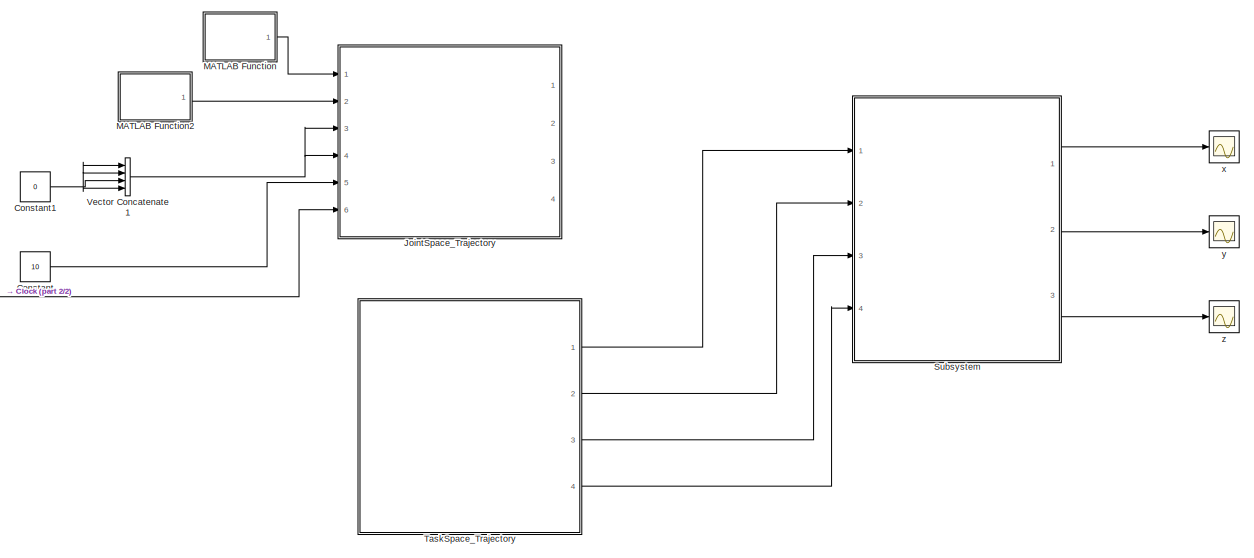
[diagram: root canvas - part 1/2, full width, middle band]
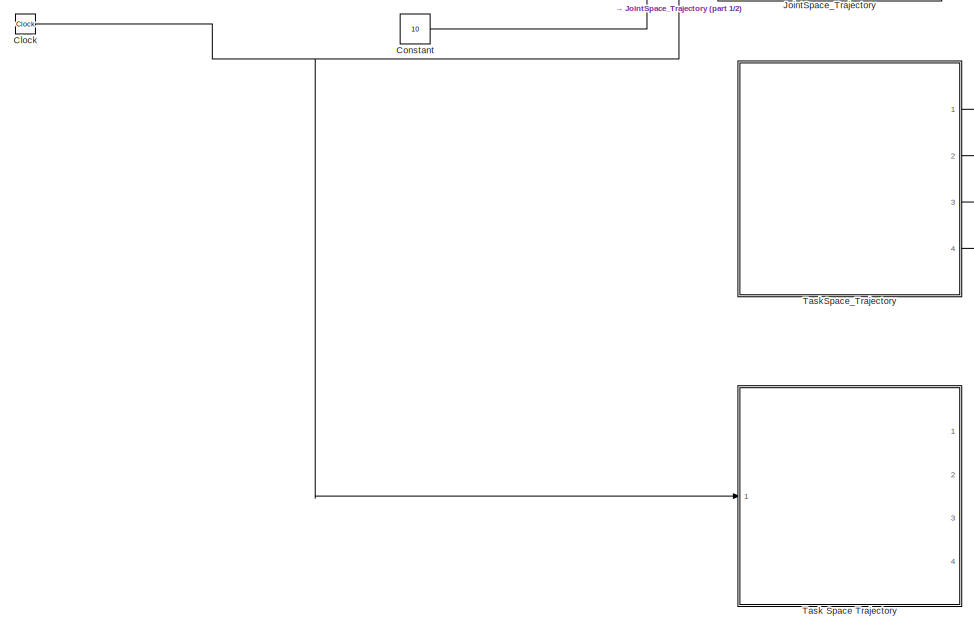
[diagram: root canvas - part 2/2, middle left region]
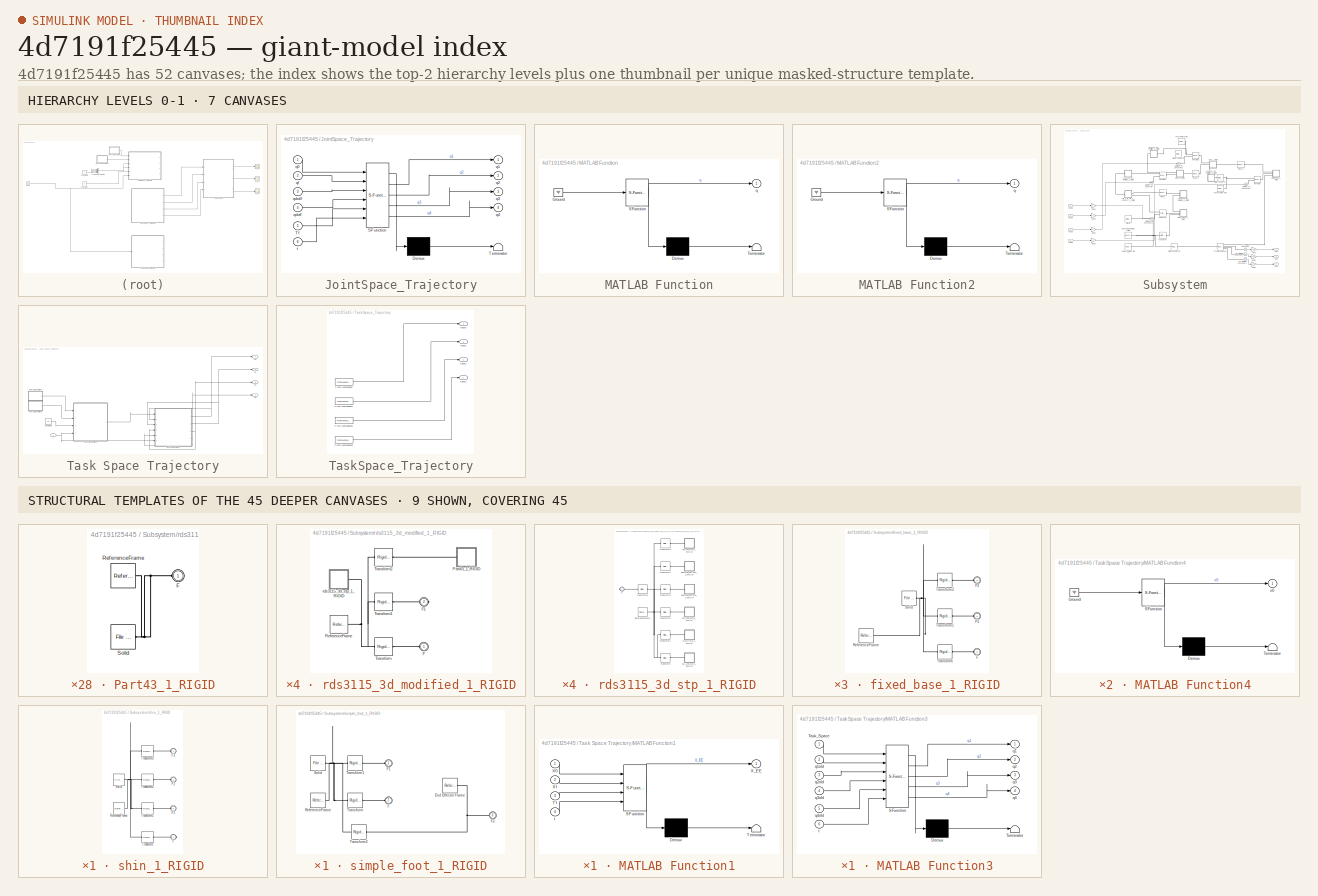
[diagram: thumbnail index - top-2 hierarchy levels (7 canvases) + 9 structural-template representatives of the remaining 45 canvases]
MODEL slx_4d7191f25445
KIND model
CONFIG AbsTol = auto
CONFIG EnableMultiTasking = off
CONFIG MaxStep = auto
CONFIG MinStep = auto
CONFIG RelTol = 1e-3
CONFIG SampleTimeConstraint = Unconstrained
CONFIG SolverName = VariableStepAuto
CONFIG StartTime = 0.0
CONFIG StopTime = 10.000
WORKSPACE source: external: MATLAB File  (data not in archive)
BLOCK [Clock] Clock
BLOCK [Constant] Constant
  Value = 10
BLOCK [Constant] Constant1
  Value = 0
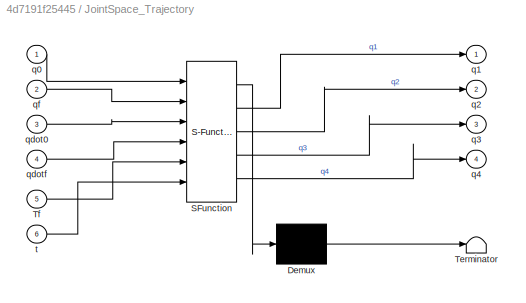
BLOCK [SubSystem] JointSpace_Trajectory
  ErrorFcn = Stateflow.Translate.translate
  PermitHierarchicalResolution = ExplicitOnly
  Ports = [6, 4]
  RequestExecContextInheritance = off
  SFBlockType = MATLAB Function
  TreatAsAtomicUnit = on
BLOCK [Demux] JointSpace_Trajectory/ Demux 
  Outputs = 1
  Ports = [1, 1]
BLOCK [S-Function] JointSpace_Trajectory/ SFunction 
  EnableBusSupport = on
  FunctionName = sf_sfun
  PortCounts = [6 5]
  Ports = [6, 5]
  SFcnIsStateOwnerBlock = off
  SFunctionDeploymentMode = off
  Tag = Stateflow S-Function 2
BLOCK [Terminator] JointSpace_Trajectory/ Terminator 
BLOCK [Inport] JointSpace_Trajectory/Tf
  Port = 5
BLOCK [Inport] JointSpace_Trajectory/q0
BLOCK [Outport] JointSpace_Trajectory/q1
BLOCK [Outport] JointSpace_Trajectory/q2
  Port = 2
BLOCK [Outport] JointSpace_Trajectory/q3
  Port = 3
BLOCK [Outport] JointSpace_Trajectory/q4
  Port = 4
BLOCK [Inport] JointSpace_Trajectory/qdot0
  Port = 3
BLOCK [Inport] JointSpace_Trajectory/qdotf
  Port = 4
BLOCK [Inport] JointSpace_Trajectory/qf
  Port = 2
BLOCK [Inport] JointSpace_Trajectory/t
  Port = 6
BLOCK [SubSystem] MATLAB Function
  ErrorFcn = Stateflow.Translate.translate
  PermitHierarchicalResolution = ExplicitOnly
  Ports = [0, 1]
  RequestExecContextInheritance = off
  SFBlockType = MATLAB Function
  TreatAsAtomicUnit = on
BLOCK [Demux] MATLAB Function/ Demux 
  Outputs = 1
  Ports = [1, 1]
BLOCK [Ground] MATLAB Function/ Ground 
BLOCK [S-Function] MATLAB Function/ SFunction 
  EnableBusSupport = on
  FunctionName = sf_sfun
  PortCounts = [1 2]
  Ports = [1, 2]
  SFcnIsStateOwnerBlock = off
  SFunctionDeploymentMode = off
  Tag = Stateflow S-Function 3
BLOCK [Terminator] MATLAB Function/ Terminator 
BLOCK [Outport] MATLAB Function/q
BLOCK [SubSystem] MATLAB Function2
  ErrorFcn = Stateflow.Translate.translate
  PermitHierarchicalResolution = ExplicitOnly
  Ports = [0, 1]
  RequestExecContextInheritance = off
  SFBlockType = MATLAB Function
  TreatAsAtomicUnit = on
BLOCK [Demux] MATLAB Function2/ Demux 
  Outputs = 1
  Ports = [1, 1]
BLOCK [Ground] MATLAB Function2/ Ground 
BLOCK [S-Function] MATLAB Function2/ SFunction 
  EnableBusSupport = on
  FunctionName = sf_sfun
  PortCounts = [1 2]
  Ports = [1, 2]
  SFcnIsStateOwnerBlock = off
  SFunctionDeploymentMode = off
  Tag = Stateflow S-Function 4
BLOCK [Terminator] MATLAB Function2/ Terminator 
BLOCK [Outport] MATLAB Function2/q
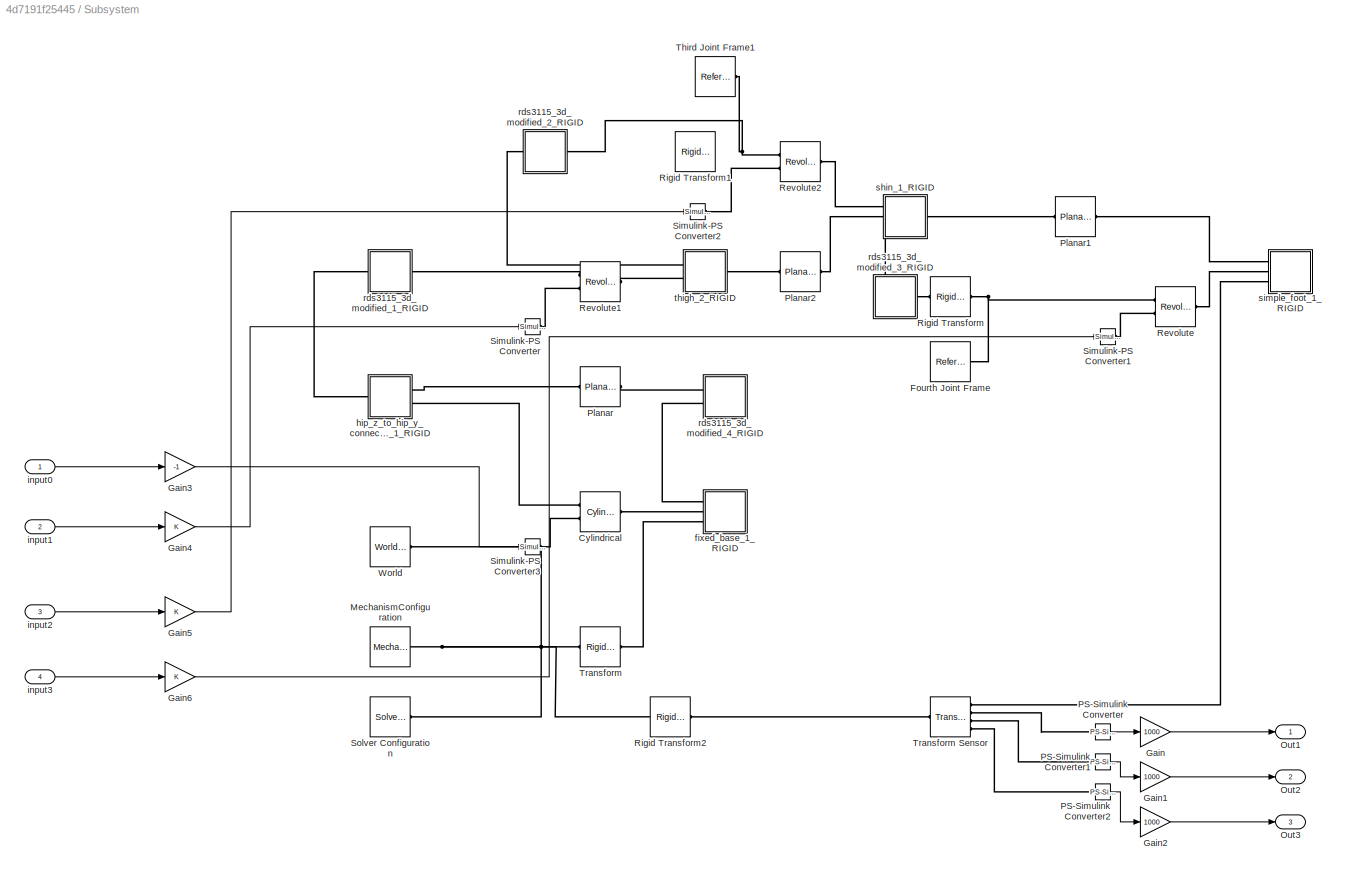
BLOCK [SubSystem] Subsystem
  Ports = [4, 3]
  RequestExecContextInheritance = off
BLOCK [Reference] Subsystem/Cylindrical  REF=sm_lib/Joints/Cylindrical
Joint
  Ports = [0, 0, 0, 0, 0, 2, 1]
  SourceBlock = sm_lib/Joints/Cylindrical\nJoint
  SourceProductBaseCode = MS
  SourceType = Cylindrical\nJoint
BLOCK [Reference] Subsystem/Fourth Joint Frame  REF=sm_lib/Frames and
Transforms/Reference
Frame
  Ports = [0, 0, 0, 0, 0, 0, 1]
  SourceBlock = sm_lib/Frames and\nTransforms/Reference\nFrame
  SourceProductBaseCode = MS
  SourceType = Reference\nFrame
BLOCK [Gain] Subsystem/Gain
  Gain = 1000
BLOCK [Gain] Subsystem/Gain1
  Gain = 1000
BLOCK [Gain] Subsystem/Gain2
  Gain = 1000
BLOCK [Gain] Subsystem/Gain3
  Gain = -1
BLOCK [Gain] Subsystem/Gain4
BLOCK [Gain] Subsystem/Gain5
BLOCK [Gain] Subsystem/Gain6
BLOCK [Reference] Subsystem/MechanismConfiguration  REF=sm_lib/Utilities/Mechanism
Configuration
  Ports = [0, 0, 0, 0, 0, 0, 1]
  SourceBlock = sm_lib/Utilities/Mechanism\nConfiguration
  SourceProductBaseCode = MS
  SourceType = Mechanism\nConfiguration
BLOCK [Outport] Subsystem/Out1
BLOCK [Outport] Subsystem/Out2
  Port = 2
BLOCK [Outport] Subsystem/Out3
  Port = 3
BLOCK [Reference] Subsystem/PS-Simulink Converter  REF=nesl_utility/PS-Simulink
Converter
  Ports = [0, 1, 0, 0, 0, 1]
  SourceBlock = nesl_utility/PS-Simulink\nConverter
  SourceProductBaseCode = PW,SS
  SourceType = PS-Simulink\nConverter
BLOCK [Reference] Subsystem/PS-Simulink Converter1  REF=nesl_utility/PS-Simulink
Converter
  Ports = [0, 1, 0, 0, 0, 1]
  SourceBlock = nesl_utility/PS-Simulink\nConverter
  SourceProductBaseCode = PW,SS
  SourceType = PS-Simulink\nConverter
BLOCK [Reference] Subsystem/PS-Simulink Converter2  REF=nesl_utility/PS-Simulink
Converter
  Ports = [0, 1, 0, 0, 0, 1]
  SourceBlock = nesl_utility/PS-Simulink\nConverter
  SourceProductBaseCode = PW,SS
  SourceType = PS-Simulink\nConverter
BLOCK [Reference] Subsystem/Planar  REF=sm_lib/Joints/Planar Joint
  Ports = [0, 0, 0, 0, 0, 1, 1]
  SourceBlock = sm_lib/Joints/Planar Joint
  SourceProductBaseCode = MS
  SourceType = Planar Joint
BLOCK [Reference] Subsystem/Planar1  REF=sm_lib/Joints/Planar Joint
  Ports = [0, 0, 0, 0, 0, 1, 1]
  SourceBlock = sm_lib/Joints/Planar Joint
  SourceProductBaseCode = MS
  SourceType = Planar Joint
BLOCK [Reference] Subsystem/Planar2  REF=sm_lib/Joints/Planar Joint
  Ports = [0, 0, 0, 0, 0, 1, 1]
  SourceBlock = sm_lib/Joints/Planar Joint
  SourceProductBaseCode = MS
  SourceType = Planar Joint
BLOCK [Reference] Subsystem/Revolute  REF=sm_lib/Joints/Revolute Joint
  Ports = [0, 0, 0, 0, 0, 2, 1]
  SourceBlock = sm_lib/Joints/Revolute Joint
  SourceProductBaseCode = MS
  SourceType = Revolute Joint
BLOCK [Reference] Subsystem/Revolute1  REF=sm_lib/Joints/Revolute Joint
  Ports = [0, 0, 0, 0, 0, 2, 1]
  SourceBlock = sm_lib/Joints/Revolute Joint
  SourceProductBaseCode = MS
  SourceType = Revolute Joint
BLOCK [Reference] Subsystem/Revolute2  REF=sm_lib/Joints/Revolute Joint
  Ports = [0, 0, 0, 0, 0, 2, 1]
  SourceBlock = sm_lib/Joints/Revolute Joint
  SourceProductBaseCode = MS
  SourceType = Revolute Joint
BLOCK [Reference] Subsystem/Rigid Transform  REF=sm_lib/Frames and
Transforms/Rigid
Transform
  Ports = [0, 0, 0, 0, 0, 1, 1]
  SourceBlock = sm_lib/Frames and\nTransforms/Rigid\nTransform
  SourceProductBaseCode = MS
  SourceType = Rigid\nTransform
BLOCK [Reference] Subsystem/Rigid Transform1  REF=sm_lib/Frames and
Transforms/Rigid
Transform
  Commented = on
  Ports = [0, 0, 0, 0, 0, 1, 1]
  SourceBlock = sm_lib/Frames and\nTransforms/Rigid\nTransform
  SourceProductBaseCode = MS
  SourceType = Rigid\nTransform
BLOCK [Reference] Subsystem/Rigid Transform2  REF=sm_lib/Frames and
Transforms/Rigid
Transform
  Ports = [0, 0, 0, 0, 0, 1, 1]
  SourceBlock = sm_lib/Frames and\nTransforms/Rigid\nTransform
  SourceProductBaseCode = MS
  SourceType = Rigid\nTransform
BLOCK [Reference] Subsystem/Simulink-PS Converter  REF=nesl_utility/Simulink-PS
Converter
  Ports = [1, 0, 0, 0, 0, 0, 1]
  SourceBlock = nesl_utility/Simulink-PS\nConverter
  SourceProductBaseCode = PW,SS
  SourceType = Simulink-PS\nConverter
BLOCK [Reference] Subsystem/Simulink-PS Converter1  REF=nesl_utility/Simulink-PS
Converter
  Ports = [1, 0, 0, 0, 0, 0, 1]
  SourceBlock = nesl_utility/Simulink-PS\nConverter
  SourceProductBaseCode = PW,SS
  SourceType = Simulink-PS\nConverter
BLOCK [Reference] Subsystem/Simulink-PS Converter2  REF=nesl_utility/Simulink-PS
Converter
  Ports = [1, 0, 0, 0, 0, 0, 1]
  SourceBlock = nesl_utility/Simulink-PS\nConverter
  SourceProductBaseCode = PW,SS
  SourceType = Simulink-PS\nConverter
BLOCK [Reference] Subsystem/Simulink-PS Converter3  REF=nesl_utility/Simulink-PS
Converter
  Ports = [1, 0, 0, 0, 0, 0, 1]
  SourceBlock = nesl_utility/Simulink-PS\nConverter
  SourceProductBaseCode = PW,SS
  SourceType = Simulink-PS\nConverter
BLOCK [Reference] Subsystem/Solver Configuration  REF=nesl_utility/Solver
Configuration
  Ports = [0, 0, 0, 0, 0, 0, 1]
  SourceBlock = nesl_utility/Solver\nConfiguration
  SourceProductBaseCode = PW,SS
  SourceType = Solver\nConfiguration
BLOCK [Reference] Subsystem/Third Joint Frame1  REF=sm_lib/Frames and
Transforms/Reference
Frame
  Ports = [0, 0, 0, 0, 0, 0, 1]
  SourceBlock = sm_lib/Frames and\nTransforms/Reference\nFrame
  SourceProductBaseCode = MS
  SourceType = Reference\nFrame
BLOCK [Reference] Subsystem/Transform  REF=sm_lib/Frames and
Transforms/Rigid
Transform
  Ports = [0, 0, 0, 0, 0, 1, 1]
  SourceBlock = sm_lib/Frames and\nTransforms/Rigid\nTransform
  SourceProductBaseCode = MS
  SourceType = Rigid\nTransform
BLOCK [Reference] Subsystem/Transform Sensor  REF=sm_lib/Frames and
Transforms/Transform
Sensor
  Ports = [0, 0, 0, 0, 0, 1, 4]
  SourceBlock = sm_lib/Frames and\nTransforms/Transform\nSensor
  SourceProductBaseCode = MS
  SourceType = Transform\nSensor
BLOCK [Reference] Subsystem/World  REF=sm_lib/Frames and
Transforms/World Frame
  Ports = [0, 0, 0, 0, 0, 0, 1]
  SourceBlock = sm_lib/Frames and\nTransforms/World Frame
  SourceProductBaseCode = MS
  SourceType = World Frame
BLOCK [SubSystem] Subsystem/fixed_base_1_RIGID
  Ports = [0, 0, 0, 0, 0, 3]
  RequestExecContextInheritance = off
BLOCK [PMIOPort] Subsystem/fixed_base_1_RIGID/F
  Port = 2
  Side = Left
BLOCK [PMIOPort] Subsystem/fixed_base_1_RIGID/F1
  Side = Left
BLOCK [PMIOPort] Subsystem/fixed_base_1_RIGID/F2
  Port = 3
  Side = Left
BLOCK [Reference] Subsystem/fixed_base_1_RIGID/ReferenceFrame  REF=sm_lib/Frames and
Transforms/Reference
Frame
  Commented = on
  Ports = [0, 0, 0, 0, 0, 0, 1]
  SourceBlock = sm_lib/Frames and\nTransforms/Reference\nFrame
  SourceProductBaseCode = MS
  SourceType = Reference\nFrame
BLOCK [Reference] Subsystem/fixed_base_1_RIGID/Solid  REF=sm_lib/Body Elements/File Solid
  Ports = [0, 0, 0, 0, 0, 0, 1]
  SourceBlock = sm_lib/Body Elements/File Solid
  SourceProductBaseCode = MS
  SourceType = File Solid
BLOCK [Reference] Subsystem/fixed_base_1_RIGID/Transform  REF=sm_lib/Frames and
Transforms/Rigid
Transform
  Ports = [0, 0, 0, 0, 0, 1, 1]
  SourceBlock = sm_lib/Frames and\nTransforms/Rigid\nTransform
  SourceProductBaseCode = MS
  SourceType = Rigid\nTransform
BLOCK [Reference] Subsystem/fixed_base_1_RIGID/Transform1  REF=sm_lib/Frames and
Transforms/Rigid
Transform
  Ports = [0, 0, 0, 0, 0, 1, 1]
  SourceBlock = sm_lib/Frames and\nTransforms/Rigid\nTransform
  SourceProductBaseCode = MS
  SourceType = Rigid\nTransform
BLOCK [Reference] Subsystem/fixed_base_1_RIGID/Transform2  REF=sm_lib/Frames and
Transforms/Rigid
Transform
  Ports = [0, 0, 0, 0, 0, 1, 1]
  SourceBlock = sm_lib/Frames and\nTransforms/Rigid\nTransform
  SourceProductBaseCode = MS
  SourceType = Rigid\nTransform
BLOCK [SubSystem] Subsystem/hip_z_to_hip_y_connecto_modified_1_RIGID
  Ports = [0, 0, 0, 0, 0, 1, 2]
  RequestExecContextInheritance = off
BLOCK [PMIOPort] Subsystem/hip_z_to_hip_y_connecto_modified_1_RIGID/F
  Port = 3
  Side = Right
BLOCK [PMIOPort] Subsystem/hip_z_to_hip_y_connecto_modified_1_RIGID/F1
  Side = Left
BLOCK [PMIOPort] Subsystem/hip_z_to_hip_y_connecto_modified_1_RIGID/F2
  Port = 2
  Side = Right
BLOCK [Reference] Subsystem/hip_z_to_hip_y_connecto_modified_1_RIGID/ReferenceFrame  REF=sm_lib/Frames and
Transforms/Reference
Frame
  Commented = on
  Ports = [0, 0, 0, 0, 0, 0, 1]
  SourceBlock = sm_lib/Frames and\nTransforms/Reference\nFrame
  SourceProductBaseCode = MS
  SourceType = Reference\nFrame
BLOCK [Reference] Subsystem/hip_z_to_hip_y_connecto_modified_1_RIGID/Solid  REF=sm_lib/Body Elements/File Solid
  Ports = [0, 0, 0, 0, 0, 0, 1]
  SourceBlock = sm_lib/Body Elements/File Solid
  SourceProductBaseCode = MS
  SourceType = File Solid
BLOCK [Reference] Subsystem/hip_z_to_hip_y_connecto_modified_1_RIGID/Transform  REF=sm_lib/Frames and
Transforms/Rigid
Transform
  Ports = [0, 0, 0, 0, 0, 1, 1]
  SourceBlock = sm_lib/Frames and\nTransforms/Rigid\nTransform
  SourceProductBaseCode = MS
  SourceType = Rigid\nTransform
BLOCK [Reference] Subsystem/hip_z_to_hip_y_connecto_modified_1_RIGID/Transform1  REF=sm_lib/Frames and
Transforms/Rigid
Transform
  Ports = [0, 0, 0, 0, 0, 1, 1]
  SourceBlock = sm_lib/Frames and\nTransforms/Rigid\nTransform
  SourceProductBaseCode = MS
  SourceType = Rigid\nTransform
BLOCK [Reference] Subsystem/hip_z_to_hip_y_connecto_modified_1_RIGID/Transform2  REF=sm_lib/Frames and
Transforms/Rigid
Transform
  Ports = [0, 0, 0, 0, 0, 1, 1]
  SourceBlock = sm_lib/Frames and\nTransforms/Rigid\nTransform
  SourceProductBaseCode = MS
  SourceType = Rigid\nTransform
BLOCK [Inport] Subsystem/input0
BLOCK [Inport] Subsystem/input1
  Port = 2
BLOCK [Inport] Subsystem/input2
  Port = 3
BLOCK [Inport] Subsystem/input3
  Port = 4
BLOCK [SubSystem] Subsystem/rds3115_3d_modified_1_RIGID
  Ports = [0, 0, 0, 0, 0, 1, 1]
  RequestExecContextInheritance = off
BLOCK [PMIOPort] Subsystem/rds3115_3d_modified_1_RIGID/F
  Side = Left
BLOCK [PMIOPort] Subsystem/rds3115_3d_modified_1_RIGID/F1
  Port = 2
  Side = Right
BLOCK [SubSystem] Subsystem/rds3115_3d_modified_1_RIGID/Part43_1_RIGID
  Ports = [0, 0, 0, 0, 0, 1]
  RequestExecContextInheritance = off
BLOCK [PMIOPort] Subsystem/rds3115_3d_modified_1_RIGID/Part43_1_RIGID/F
  Side = Left
BLOCK [Reference] Subsystem/rds3115_3d_modified_1_RIGID/Part43_1_RIGID/ReferenceFrame  REF=sm_lib/Frames and
Transforms/Reference
Frame
  Commented = on
  Ports = [0, 0, 0, 0, 0, 0, 1]
  SourceBlock = sm_lib/Frames and\nTransforms/Reference\nFrame
  SourceProductBaseCode = MS
  SourceType = Reference\nFrame
BLOCK [Reference] Subsystem/rds3115_3d_modified_1_RIGID/Part43_1_RIGID/Solid  REF=sm_lib/Body Elements/File Solid
  Ports = [0, 0, 0, 0, 0, 0, 1]
  SourceBlock = sm_lib/Body Elements/File Solid
  SourceProductBaseCode = MS
  SourceType = File Solid
BLOCK [Reference] Subsystem/rds3115_3d_modified_1_RIGID/ReferenceFrame  REF=sm_lib/Frames and
Transforms/Reference
Frame
  Ports = [0, 0, 0, 0, 0, 0, 1]
  SourceBlock = sm_lib/Frames and\nTransforms/Reference\nFrame
  SourceProductBaseCode = MS
  SourceType = Reference\nFrame
BLOCK [Reference] Subsystem/rds3115_3d_modified_1_RIGID/Transform  REF=sm_lib/Frames and
Transforms/Rigid
Transform
  Ports = [0, 0, 0, 0, 0, 1, 1]
  SourceBlock = sm_lib/Frames and\nTransforms/Rigid\nTransform
  SourceProductBaseCode = MS
  SourceType = Rigid\nTransform
BLOCK [Reference] Subsystem/rds3115_3d_modified_1_RIGID/Transform1  REF=sm_lib/Frames and
Transforms/Rigid
Transform
  Ports = [0, 0, 0, 0, 0, 1, 1]
  SourceBlock = sm_lib/Frames and\nTransforms/Rigid\nTransform
  SourceProductBaseCode = MS
  SourceType = Rigid\nTransform
BLOCK [Reference] Subsystem/rds3115_3d_modified_1_RIGID/Transform2  REF=sm_lib/Frames and
Transforms/Rigid
Transform
  Ports = [0, 0, 0, 0, 0, 1, 1]
  SourceBlock = sm_lib/Frames and\nTransforms/Rigid\nTransform
  SourceProductBaseCode = MS
  SourceType = Rigid\nTransform
BLOCK [SubSystem] Subsystem/rds3115_3d_modified_1_RIGID/rds3115_3d_stp_1_RIGID
  Ports = [0, 0, 0, 0, 0, 0, 1]
  RequestExecContextInheritance = off
BLOCK [SubSystem] Subsystem/rds3115_3d_modified_1_RIGID/rds3115_3d_stp_1_RIGID/DG_130_stp_1_RIGID
  Ports = [0, 0, 0, 0, 0, 1]
  RequestExecContextInheritance = off
BLOCK [PMIOPort] Subsystem/rds3115_3d_modified_1_RIGID/rds3115_3d_stp_1_RIGID/DG_130_stp_1_RIGID/F
  Side = Left
BLOCK [Reference] Subsystem/rds3115_3d_modified_1_RIGID/rds3115_3d_stp_1_RIGID/DG_130_stp_1_RIGID/ReferenceFrame  REF=sm_lib/Frames and
Transforms/Reference
Frame
  Commented = on
  Ports = [0, 0, 0, 0, 0, 0, 1]
  SourceBlock = sm_lib/Frames and\nTransforms/Reference\nFrame
  SourceProductBaseCode = MS
  SourceType = Reference\nFrame
BLOCK [Reference] Subsystem/rds3115_3d_modified_1_RIGID/rds3115_3d_stp_1_RIGID/DG_130_stp_1_RIGID/Solid  REF=sm_lib/Body Elements/File Solid
  Ports = [0, 0, 0, 0, 0, 0, 1]
  SourceBlock = sm_lib/Body Elements/File Solid
  SourceProductBaseCode = MS
  SourceType = File Solid
BLOCK [SubSystem] Subsystem/rds3115_3d_modified_1_RIGID/rds3115_3d_stp_1_RIGID/DUOPAN_DG_stp_1_RIGID
  Ports = [0, 0, 0, 0, 0, 1]
  RequestExecContextInheritance = off
BLOCK [PMIOPort] Subsystem/rds3115_3d_modified_1_RIGID/rds3115_3d_stp_1_RIGID/DUOPAN_DG_stp_1_RIGID/F
  Side = Left
BLOCK [Reference] Subsystem/rds3115_3d_modified_1_RIGID/rds3115_3d_stp_1_RIGID/DUOPAN_DG_stp_1_RIGID/ReferenceFrame  REF=sm_lib/Frames and
Transforms/Reference
Frame
  Commented = on
  Ports = [0, 0, 0, 0, 0, 0, 1]
  SourceBlock = sm_lib/Frames and\nTransforms/Reference\nFrame
  SourceProductBaseCode = MS
  SourceType = Reference\nFrame
BLOCK [Reference] Subsystem/rds3115_3d_modified_1_RIGID/rds3115_3d_stp_1_RIGID/DUOPAN_DG_stp_1_RIGID/Solid  REF=sm_lib/Body Elements/File Solid
  Ports = [0, 0, 0, 0, 0, 0, 1]
  SourceBlock = sm_lib/Body Elements/File Solid
  SourceProductBaseCode = MS
  SourceType = File Solid
BLOCK [SubSystem] Subsystem/rds3115_3d_modified_1_RIGID/rds3115_3d_stp_1_RIGID/DUOPAN_SG_stp_1_RIGID
  Ports = [0, 0, 0, 0, 0, 1]
  RequestExecContextInheritance = off
BLOCK [PMIOPort] Subsystem/rds3115_3d_modified_1_RIGID/rds3115_3d_stp_1_RIGID/DUOPAN_SG_stp_1_RIGID/F
  Side = Left
BLOCK [Reference] Subsystem/rds3115_3d_modified_1_RIGID/rds3115_3d_stp_1_RIGID/DUOPAN_SG_stp_1_RIGID/ReferenceFrame  REF=sm_lib/Frames and
Transforms/Reference
Frame
  Commented = on
  Ports = [0, 0, 0, 0, 0, 0, 1]
  SourceBlock = sm_lib/Frames and\nTransforms/Reference\nFrame
  SourceProductBaseCode = MS
  SourceType = Reference\nFrame
BLOCK [Reference] Subsystem/rds3115_3d_modified_1_RIGID/rds3115_3d_stp_1_RIGID/DUOPAN_SG_stp_1_RIGID/Solid  REF=sm_lib/Body Elements/File Solid
  Ports = [0, 0, 0, 0, 0, 0, 1]
  SourceBlock = sm_lib/Body Elements/File Solid
  SourceProductBaseCode = MS
  SourceType = File Solid
BLOCK [PMIOPort] Subsystem/rds3115_3d_modified_1_RIGID/rds3115_3d_stp_1_RIGID/F
  Side = Right
BLOCK [SubSystem] Subsystem/rds3115_3d_modified_1_RIGID/rds3115_3d_stp_1_RIGID/GE_57_stp_1_RIGID
  Ports = [0, 0, 0, 0, 0, 1]
  RequestExecContextInheritance = off
BLOCK [PMIOPort] Subsystem/rds3115_3d_modified_1_RIGID/rds3115_3d_stp_1_RIGID/GE_57_stp_1_RIGID/F
  Side = Left
BLOCK [Reference] Subsystem/rds3115_3d_modified_1_RIGID/rds3115_3d_stp_1_RIGID/GE_57_stp_1_RIGID/ReferenceFrame  REF=sm_lib/Frames and
Transforms/Reference
Frame
  Commented = on
  Ports = [0, 0, 0, 0, 0, 0, 1]
  SourceBlock = sm_lib/Frames and\nTransforms/Reference\nFrame
  SourceProductBaseCode = MS
  SourceType = Reference\nFrame
BLOCK [Reference] Subsystem/rds3115_3d_modified_1_RIGID/rds3115_3d_stp_1_RIGID/GE_57_stp_1_RIGID/Solid  REF=sm_lib/Body Elements/File Solid
  Ports = [0, 0, 0, 0, 0, 0, 1]
  SourceBlock = sm_lib/Body Elements/File Solid
  SourceProductBaseCode = MS
  SourceType = File Solid
BLOCK [Reference] Subsystem/rds3115_3d_modified_1_RIGID/rds3115_3d_stp_1_RIGID/ReferenceFrame  REF=sm_lib/Frames and
Transforms/Reference
Frame
  Commented = on
  Ports = [0, 0, 0, 0, 0, 0, 1]
  SourceBlock = sm_lib/Frames and\nTransforms/Reference\nFrame
  SourceProductBaseCode = MS
  SourceType = Reference\nFrame
BLOCK [SubSystem] Subsystem/rds3115_3d_modified_1_RIGID/rds3115_3d_stp_1_RIGID/SG_178_stp_1_RIGID
  Ports = [0, 0, 0, 0, 0, 1]
  RequestExecContextInheritance = off
BLOCK [PMIOPort] Subsystem/rds3115_3d_modified_1_RIGID/rds3115_3d_stp_1_RIGID/SG_178_stp_1_RIGID/F
  Side = Left
BLOCK [Reference] Subsystem/rds3115_3d_modified_1_RIGID/rds3115_3d_stp_1_RIGID/SG_178_stp_1_RIGID/ReferenceFrame  REF=sm_lib/Frames and
Transforms/Reference
Frame
  Commented = on
  Ports = [0, 0, 0, 0, 0, 0, 1]
  SourceBlock = sm_lib/Frames and\nTransforms/Reference\nFrame
  SourceProductBaseCode = MS
  SourceType = Reference\nFrame
BLOCK [Reference] Subsystem/rds3115_3d_modified_1_RIGID/rds3115_3d_stp_1_RIGID/SG_178_stp_1_RIGID/Solid  REF=sm_lib/Body Elements/File Solid
  Ports = [0, 0, 0, 0, 0, 0, 1]
  SourceBlock = sm_lib/Body Elements/File Solid
  SourceProductBaseCode = MS
  SourceType = File Solid
BLOCK [Reference] Subsystem/rds3115_3d_modified_1_RIGID/rds3115_3d_stp_1_RIGID/Transform  REF=sm_lib/Frames and
Transforms/Rigid
Transform
  Ports = [0, 0, 0, 0, 0, 1, 1]
  SourceBlock = sm_lib/Frames and\nTransforms/Rigid\nTransform
  SourceProductBaseCode = MS
  SourceType = Rigid\nTransform
BLOCK [Reference] Subsystem/rds3115_3d_modified_1_RIGID/rds3115_3d_stp_1_RIGID/Transform1  REF=sm_lib/Frames and
Transforms/Rigid
Transform
  Ports = [0, 0, 0, 0, 0, 1, 1]
  SourceBlock = sm_lib/Frames and\nTransforms/Rigid\nTransform
  SourceProductBaseCode = MS
  SourceType = Rigid\nTransform
BLOCK [Reference] Subsystem/rds3115_3d_modified_1_RIGID/rds3115_3d_stp_1_RIGID/Transform2  REF=sm_lib/Frames and
Transforms/Rigid
Transform
  Ports = [0, 0, 0, 0, 0, 1, 1]
  SourceBlock = sm_lib/Frames and\nTransforms/Rigid\nTransform
  SourceProductBaseCode = MS
  SourceType = Rigid\nTransform
BLOCK [Reference] Subsystem/rds3115_3d_modified_1_RIGID/rds3115_3d_stp_1_RIGID/Transform3  REF=sm_lib/Frames and
Transforms/Rigid
Transform
  Ports = [0, 0, 0, 0, 0, 1, 1]
  SourceBlock = sm_lib/Frames and\nTransforms/Rigid\nTransform
  SourceProductBaseCode = MS
  SourceType = Rigid\nTransform
BLOCK [Reference] Subsystem/rds3115_3d_modified_1_RIGID/rds3115_3d_stp_1_RIGID/Transform4  REF=sm_lib/Frames and
Transforms/Rigid
Transform
  Ports = [0, 0, 0, 0, 0, 1, 1]
  SourceBlock = sm_lib/Frames and\nTransforms/Rigid\nTransform
  SourceProductBaseCode = MS
  SourceType = Rigid\nTransform
BLOCK [Reference] Subsystem/rds3115_3d_modified_1_RIGID/rds3115_3d_stp_1_RIGID/Transform5  REF=sm_lib/Frames and
Transforms/Rigid
Transform
  Ports = [0, 0, 0, 0, 0, 1, 1]
  SourceBlock = sm_lib/Frames and\nTransforms/Rigid\nTransform
  SourceProductBaseCode = MS
  SourceType = Rigid\nTransform
BLOCK [Reference] Subsystem/rds3115_3d_modified_1_RIGID/rds3115_3d_stp_1_RIGID/Transform6  REF=sm_lib/Frames and
Transforms/Rigid
Transform
  Ports = [0, 0, 0, 0, 0, 1, 1]
  SourceBlock = sm_lib/Frames and\nTransforms/Rigid\nTransform
  SourceProductBaseCode = MS
  SourceType = Rigid\nTransform
BLOCK [SubSystem] Subsystem/rds3115_3d_modified_1_RIGID/rds3115_3d_stp_1_RIGID/ZK_142_stp_1_RIGID
  Ports = [0, 0, 0, 0, 0, 1]
  RequestExecContextInheritance = off
BLOCK [PMIOPort] Subsystem/rds3115_3d_modified_1_RIGID/rds3115_3d_stp_1_RIGID/ZK_142_stp_1_RIGID/F
  Side = Left
BLOCK [Reference] Subsystem/rds3115_3d_modified_1_RIGID/rds3115_3d_stp_1_RIGID/ZK_142_stp_1_RIGID/ReferenceFrame  REF=sm_lib/Frames and
Transforms/Reference
Frame
  Commented = on
  Ports = [0, 0, 0, 0, 0, 0, 1]
  SourceBlock = sm_lib/Frames and\nTransforms/Reference\nFrame
  SourceProductBaseCode = MS
  SourceType = Reference\nFrame
BLOCK [Reference] Subsystem/rds3115_3d_modified_1_RIGID/rds3115_3d_stp_1_RIGID/ZK_142_stp_1_RIGID/Solid  REF=sm_lib/Body Elements/File Solid
  Ports = [0, 0, 0, 0, 0, 0, 1]
  SourceBlock = sm_lib/Body Elements/File Solid
  SourceProductBaseCode = MS
  SourceType = File Solid
BLOCK [SubSystem] Subsystem/rds3115_3d_modified_2_RIGID
  Ports = [0, 0, 0, 0, 0, 1, 1]
  RequestExecContextInheritance = off
BLOCK [PMIOPort] Subsystem/rds3115_3d_modified_2_RIGID/F
  Side = Left
BLOCK [PMIOPort] Subsystem/rds3115_3d_modified_2_RIGID/F1
  Port = 2
  Side = Right
BLOCK [SubSystem] Subsystem/rds3115_3d_modified_2_RIGID/Part43_1_RIGID
  Ports = [0, 0, 0, 0, 0, 1]
  RequestExecContextInheritance = off
BLOCK [PMIOPort] Subsystem/rds3115_3d_modified_2_RIGID/Part43_1_RIGID/F
  Side = Left
BLOCK [Reference] Subsystem/rds3115_3d_modified_2_RIGID/Part43_1_RIGID/ReferenceFrame  REF=sm_lib/Frames and
Transforms/Reference
Frame
  Commented = on
  Ports = [0, 0, 0, 0, 0, 0, 1]
  SourceBlock = sm_lib/Frames and\nTransforms/Reference\nFrame
  SourceProductBaseCode = MS
  SourceType = Reference\nFrame
BLOCK [Reference] Subsystem/rds3115_3d_modified_2_RIGID/Part43_1_RIGID/Solid  REF=sm_lib/Body Elements/File Solid
  Ports = [0, 0, 0, 0, 0, 0, 1]
  SourceBlock = sm_lib/Body Elements/File Solid
  SourceProductBaseCode = MS
  SourceType = File Solid
BLOCK [Reference] Subsystem/rds3115_3d_modified_2_RIGID/ReferenceFrame  REF=sm_lib/Frames and
Transforms/Reference
Frame
  Commented = on
  Ports = [0, 0, 0, 0, 0, 0, 1]
  SourceBlock = sm_lib/Frames and\nTransforms/Reference\nFrame
  SourceProductBaseCode = MS
  SourceType = Reference\nFrame
BLOCK [Reference] Subsystem/rds3115_3d_modified_2_RIGID/Transform  REF=sm_lib/Frames and
Transforms/Rigid
Transform
  Ports = [0, 0, 0, 0, 0, 1, 1]
  SourceBlock = sm_lib/Frames and\nTransforms/Rigid\nTransform
  SourceProductBaseCode = MS
  SourceType = Rigid\nTransform
BLOCK [Reference] Subsystem/rds3115_3d_modified_2_RIGID/Transform1  REF=sm_lib/Frames and
Transforms/Rigid
Transform
  Ports = [0, 0, 0, 0, 0, 1, 1]
  SourceBlock = sm_lib/Frames and\nTransforms/Rigid\nTransform
  SourceProductBaseCode = MS
  SourceType = Rigid\nTransform
BLOCK [Reference] Subsystem/rds3115_3d_modified_2_RIGID/Transform2  REF=sm_lib/Frames and
Transforms/Rigid
Transform
  Ports = [0, 0, 0, 0, 0, 1, 1]
  SourceBlock = sm_lib/Frames and\nTransforms/Rigid\nTransform
  SourceProductBaseCode = MS
  SourceType = Rigid\nTransform
BLOCK [SubSystem] Subsystem/rds3115_3d_modified_2_RIGID/rds3115_3d_stp_1_RIGID
  Ports = [0, 0, 0, 0, 0, 0, 1]
  RequestExecContextInheritance = off
BLOCK [SubSystem] Subsystem/rds3115_3d_modified_2_RIGID/rds3115_3d_stp_1_RIGID/DG_130_stp_1_RIGID
  Ports = [0, 0, 0, 0, 0, 1]
  RequestExecContextInheritance = off
BLOCK [PMIOPort] Subsystem/rds3115_3d_modified_2_RIGID/rds3115_3d_stp_1_RIGID/DG_130_stp_1_RIGID/F
  Side = Left
BLOCK [Reference] Subsystem/rds3115_3d_modified_2_RIGID/rds3115_3d_stp_1_RIGID/DG_130_stp_1_RIGID/ReferenceFrame  REF=sm_lib/Frames and
Transforms/Reference
Frame
  Commented = on
  Ports = [0, 0, 0, 0, 0, 0, 1]
  SourceBlock = sm_lib/Frames and\nTransforms/Reference\nFrame
  SourceProductBaseCode = MS
  SourceType = Reference\nFrame
BLOCK [Reference] Subsystem/rds3115_3d_modified_2_RIGID/rds3115_3d_stp_1_RIGID/DG_130_stp_1_RIGID/Solid  REF=sm_lib/Body Elements/File Solid
  Ports = [0, 0, 0, 0, 0, 0, 1]
  SourceBlock = sm_lib/Body Elements/File Solid
  SourceProductBaseCode = MS
  SourceType = File Solid
BLOCK [SubSystem] Subsystem/rds3115_3d_modified_2_RIGID/rds3115_3d_stp_1_RIGID/DUOPAN_DG_stp_1_RIGID
  Ports = [0, 0, 0, 0, 0, 1]
  RequestExecContextInheritance = off
BLOCK [PMIOPort] Subsystem/rds3115_3d_modified_2_RIGID/rds3115_3d_stp_1_RIGID/DUOPAN_DG_stp_1_RIGID/F
  Side = Left
BLOCK [Reference] Subsystem/rds3115_3d_modified_2_RIGID/rds3115_3d_stp_1_RIGID/DUOPAN_DG_stp_1_RIGID/ReferenceFrame  REF=sm_lib/Frames and
Transforms/Reference
Frame
  Commented = on
  Ports = [0, 0, 0, 0, 0, 0, 1]
  SourceBlock = sm_lib/Frames and\nTransforms/Reference\nFrame
  SourceProductBaseCode = MS
  SourceType = Reference\nFrame
BLOCK [Reference] Subsystem/rds3115_3d_modified_2_RIGID/rds3115_3d_stp_1_RIGID/DUOPAN_DG_stp_1_RIGID/Solid  REF=sm_lib/Body Elements/File Solid
  Ports = [0, 0, 0, 0, 0, 0, 1]
  SourceBlock = sm_lib/Body Elements/File Solid
  SourceProductBaseCode = MS
  SourceType = File Solid
BLOCK [SubSystem] Subsystem/rds3115_3d_modified_2_RIGID/rds3115_3d_stp_1_RIGID/DUOPAN_SG_stp_1_RIGID
  Ports = [0, 0, 0, 0, 0, 1]
  RequestExecContextInheritance = off
BLOCK [PMIOPort] Subsystem/rds3115_3d_modified_2_RIGID/rds3115_3d_stp_1_RIGID/DUOPAN_SG_stp_1_RIGID/F
  Side = Left
BLOCK [Reference] Subsystem/rds3115_3d_modified_2_RIGID/rds3115_3d_stp_1_RIGID/DUOPAN_SG_stp_1_RIGID/ReferenceFrame  REF=sm_lib/Frames and
Transforms/Reference
Frame
  Commented = on
  Ports = [0, 0, 0, 0, 0, 0, 1]
  SourceBlock = sm_lib/Frames and\nTransforms/Reference\nFrame
  SourceProductBaseCode = MS
  SourceType = Reference\nFrame
BLOCK [Reference] Subsystem/rds3115_3d_modified_2_RIGID/rds3115_3d_stp_1_RIGID/DUOPAN_SG_stp_1_RIGID/Solid  REF=sm_lib/Body Elements/File Solid
  Ports = [0, 0, 0, 0, 0, 0, 1]
  SourceBlock = sm_lib/Body Elements/File Solid
  SourceProductBaseCode = MS
  SourceType = File Solid
BLOCK [PMIOPort] Subsystem/rds3115_3d_modified_2_RIGID/rds3115_3d_stp_1_RIGID/F
  Side = Right
BLOCK [SubSystem] Subsystem/rds3115_3d_modified_2_RIGID/rds3115_3d_stp_1_RIGID/GE_57_stp_1_RIGID
  Ports = [0, 0, 0, 0, 0, 1]
  RequestExecContextInheritance = off
BLOCK [PMIOPort] Subsystem/rds3115_3d_modified_2_RIGID/rds3115_3d_stp_1_RIGID/GE_57_stp_1_RIGID/F
  Side = Left
BLOCK [Reference] Subsystem/rds3115_3d_modified_2_RIGID/rds3115_3d_stp_1_RIGID/GE_57_stp_1_RIGID/ReferenceFrame  REF=sm_lib/Frames and
Transforms/Reference
Frame
  Commented = on
  Ports = [0, 0, 0, 0, 0, 0, 1]
  SourceBlock = sm_lib/Frames and\nTransforms/Reference\nFrame
  SourceProductBaseCode = MS
  SourceType = Reference\nFrame
BLOCK [Reference] Subsystem/rds3115_3d_modified_2_RIGID/rds3115_3d_stp_1_RIGID/GE_57_stp_1_RIGID/Solid  REF=sm_lib/Body Elements/File Solid
  Ports = [0, 0, 0, 0, 0, 0, 1]
  SourceBlock = sm_lib/Body Elements/File Solid
  SourceProductBaseCode = MS
  SourceType = File Solid
BLOCK [Reference] Subsystem/rds3115_3d_modified_2_RIGID/rds3115_3d_stp_1_RIGID/ReferenceFrame  REF=sm_lib/Frames and
Transforms/Reference
Frame
  Commented = on
  Ports = [0, 0, 0, 0, 0, 0, 1]
  SourceBlock = sm_lib/Frames and\nTransforms/Reference\nFrame
  SourceProductBaseCode = MS
  SourceType = Reference\nFrame
BLOCK [SubSystem] Subsystem/rds3115_3d_modified_2_RIGID/rds3115_3d_stp_1_RIGID/SG_178_stp_1_RIGID
  Ports = [0, 0, 0, 0, 0, 1]
  RequestExecContextInheritance = off
BLOCK [PMIOPort] Subsystem/rds3115_3d_modified_2_RIGID/rds3115_3d_stp_1_RIGID/SG_178_stp_1_RIGID/F
  Side = Left
BLOCK [Reference] Subsystem/rds3115_3d_modified_2_RIGID/rds3115_3d_stp_1_RIGID/SG_178_stp_1_RIGID/ReferenceFrame  REF=sm_lib/Frames and
Transforms/Reference
Frame
  Commented = on
  Ports = [0, 0, 0, 0, 0, 0, 1]
  SourceBlock = sm_lib/Frames and\nTransforms/Reference\nFrame
  SourceProductBaseCode = MS
  SourceType = Reference\nFrame
BLOCK [Reference] Subsystem/rds3115_3d_modified_2_RIGID/rds3115_3d_stp_1_RIGID/SG_178_stp_1_RIGID/Solid  REF=sm_lib/Body Elements/File Solid
  Ports = [0, 0, 0, 0, 0, 0, 1]
  SourceBlock = sm_lib/Body Elements/File Solid
  SourceProductBaseCode = MS
  SourceType = File Solid
BLOCK [Reference] Subsystem/rds3115_3d_modified_2_RIGID/rds3115_3d_stp_1_RIGID/Transform  REF=sm_lib/Frames and
Transforms/Rigid
Transform
  Ports = [0, 0, 0, 0, 0, 1, 1]
  SourceBlock = sm_lib/Frames and\nTransforms/Rigid\nTransform
  SourceProductBaseCode = MS
  SourceType = Rigid\nTransform
BLOCK [Reference] Subsystem/rds3115_3d_modified_2_RIGID/rds3115_3d_stp_1_RIGID/Transform1  REF=sm_lib/Frames and
Transforms/Rigid
Transform
  Ports = [0, 0, 0, 0, 0, 1, 1]
  SourceBlock = sm_lib/Frames and\nTransforms/Rigid\nTransform
  SourceProductBaseCode = MS
  SourceType = Rigid\nTransform
BLOCK [Reference] Subsystem/rds3115_3d_modified_2_RIGID/rds3115_3d_stp_1_RIGID/Transform2  REF=sm_lib/Frames and
Transforms/Rigid
Transform
  Ports = [0, 0, 0, 0, 0, 1, 1]
  SourceBlock = sm_lib/Frames and\nTransforms/Rigid\nTransform
  SourceProductBaseCode = MS
  SourceType = Rigid\nTransform
BLOCK [Reference] Subsystem/rds3115_3d_modified_2_RIGID/rds3115_3d_stp_1_RIGID/Transform3  REF=sm_lib/Frames and
Transforms/Rigid
Transform
  Ports = [0, 0, 0, 0, 0, 1, 1]
  SourceBlock = sm_lib/Frames and\nTransforms/Rigid\nTransform
  SourceProductBaseCode = MS
  SourceType = Rigid\nTransform
BLOCK [Reference] Subsystem/rds3115_3d_modified_2_RIGID/rds3115_3d_stp_1_RIGID/Transform4  REF=sm_lib/Frames and
Transforms/Rigid
Transform
  Ports = [0, 0, 0, 0, 0, 1, 1]
  SourceBlock = sm_lib/Frames and\nTransforms/Rigid\nTransform
  SourceProductBaseCode = MS
  SourceType = Rigid\nTransform
BLOCK [Reference] Subsystem/rds3115_3d_modified_2_RIGID/rds3115_3d_stp_1_RIGID/Transform5  REF=sm_lib/Frames and
Transforms/Rigid
Transform
  Ports = [0, 0, 0, 0, 0, 1, 1]
  SourceBlock = sm_lib/Frames and\nTransforms/Rigid\nTransform
  SourceProductBaseCode = MS
  SourceType = Rigid\nTransform
BLOCK [Reference] Subsystem/rds3115_3d_modified_2_RIGID/rds3115_3d_stp_1_RIGID/Transform6  REF=sm_lib/Frames and
Transforms/Rigid
Transform
  Ports = [0, 0, 0, 0, 0, 1, 1]
  SourceBlock = sm_lib/Frames and\nTransforms/Rigid\nTransform
  SourceProductBaseCode = MS
  SourceType = Rigid\nTransform
BLOCK [SubSystem] Subsystem/rds3115_3d_modified_2_RIGID/rds3115_3d_stp_1_RIGID/ZK_142_stp_1_RIGID
  Ports = [0, 0, 0, 0, 0, 1]
  RequestExecContextInheritance = off
BLOCK [PMIOPort] Subsystem/rds3115_3d_modified_2_RIGID/rds3115_3d_stp_1_RIGID/ZK_142_stp_1_RIGID/F
  Side = Left
BLOCK [Reference] Subsystem/rds3115_3d_modified_2_RIGID/rds3115_3d_stp_1_RIGID/ZK_142_stp_1_RIGID/ReferenceFrame  REF=sm_lib/Frames and
Transforms/Reference
Frame
  Commented = on
  Ports = [0, 0, 0, 0, 0, 0, 1]
  SourceBlock = sm_lib/Frames and\nTransforms/Reference\nFrame
  SourceProductBaseCode = MS
  SourceType = Reference\nFrame
BLOCK [Reference] Subsystem/rds3115_3d_modified_2_RIGID/rds3115_3d_stp_1_RIGID/ZK_142_stp_1_RIGID/Solid  REF=sm_lib/Body Elements/File Solid
  Ports = [0, 0, 0, 0, 0, 0, 1]
  SourceBlock = sm_lib/Body Elements/File Solid
  SourceProductBaseCode = MS
  SourceType = File Solid
BLOCK [SubSystem] Subsystem/rds3115_3d_modified_3_RIGID
  Ports = [0, 0, 0, 0, 0, 1, 1]
  RequestExecContextInheritance = off
BLOCK [PMIOPort] Subsystem/rds3115_3d_modified_3_RIGID/F
  Port = 2
  Side = Right
BLOCK [PMIOPort] Subsystem/rds3115_3d_modified_3_RIGID/F1
  Side = Left
BLOCK [SubSystem] Subsystem/rds3115_3d_modified_3_RIGID/Part43_1_RIGID
  Ports = [0, 0, 0, 0, 0, 1]
  RequestExecContextInheritance = off
BLOCK [PMIOPort] Subsystem/rds3115_3d_modified_3_RIGID/Part43_1_RIGID/F
  Side = Left
BLOCK [Reference] Subsystem/rds3115_3d_modified_3_RIGID/Part43_1_RIGID/ReferenceFrame  REF=sm_lib/Frames and
Transforms/Reference
Frame
  Commented = on
  Ports = [0, 0, 0, 0, 0, 0, 1]
  SourceBlock = sm_lib/Frames and\nTransforms/Reference\nFrame
  SourceProductBaseCode = MS
  SourceType = Reference\nFrame
BLOCK [Reference] Subsystem/rds3115_3d_modified_3_RIGID/Part43_1_RIGID/Solid  REF=sm_lib/Body Elements/File Solid
  Ports = [0, 0, 0, 0, 0, 0, 1]
  SourceBlock = sm_lib/Body Elements/File Solid
  SourceProductBaseCode = MS
  SourceType = File Solid
BLOCK [Reference] Subsystem/rds3115_3d_modified_3_RIGID/ReferenceFrame  REF=sm_lib/Frames and
Transforms/Reference
Frame
  Commented = on
  Ports = [0, 0, 0, 0, 0, 0, 1]
  SourceBlock = sm_lib/Frames and\nTransforms/Reference\nFrame
  SourceProductBaseCode = MS
  SourceType = Reference\nFrame
BLOCK [Reference] Subsystem/rds3115_3d_modified_3_RIGID/Transform  REF=sm_lib/Frames and
Transforms/Rigid
Transform
  Ports = [0, 0, 0, 0, 0, 1, 1]
  SourceBlock = sm_lib/Frames and\nTransforms/Rigid\nTransform
  SourceProductBaseCode = MS
  SourceType = Rigid\nTransform
BLOCK [Reference] Subsystem/rds3115_3d_modified_3_RIGID/Transform1  REF=sm_lib/Frames and
Transforms/Rigid
Transform
  Ports = [0, 0, 0, 0, 0, 1, 1]
  SourceBlock = sm_lib/Frames and\nTransforms/Rigid\nTransform
  SourceProductBaseCode = MS
  SourceType = Rigid\nTransform
BLOCK [Reference] Subsystem/rds3115_3d_modified_3_RIGID/Transform2  REF=sm_lib/Frames and
Transforms/Rigid
Transform
  Ports = [0, 0, 0, 0, 0, 1, 1]
  SourceBlock = sm_lib/Frames and\nTransforms/Rigid\nTransform
  SourceProductBaseCode = MS
  SourceType = Rigid\nTransform
BLOCK [SubSystem] Subsystem/rds3115_3d_modified_3_RIGID/rds3115_3d_stp_1_RIGID
  Ports = [0, 0, 0, 0, 0, 0, 1]
  RequestExecContextInheritance = off
BLOCK [SubSystem] Subsystem/rds3115_3d_modified_3_RIGID/rds3115_3d_stp_1_RIGID/DG_130_stp_1_RIGID
  Ports = [0, 0, 0, 0, 0, 1]
  RequestExecContextInheritance = off
BLOCK [PMIOPort] Subsystem/rds3115_3d_modified_3_RIGID/rds3115_3d_stp_1_RIGID/DG_130_stp_1_RIGID/F
  Side = Left
BLOCK [Reference] Subsystem/rds3115_3d_modified_3_RIGID/rds3115_3d_stp_1_RIGID/DG_130_stp_1_RIGID/ReferenceFrame  REF=sm_lib/Frames and
Transforms/Reference
Frame
  Commented = on
  Ports = [0, 0, 0, 0, 0, 0, 1]
  SourceBlock = sm_lib/Frames and\nTransforms/Reference\nFrame
  SourceProductBaseCode = MS
  SourceType = Reference\nFrame
BLOCK [Reference] Subsystem/rds3115_3d_modified_3_RIGID/rds3115_3d_stp_1_RIGID/DG_130_stp_1_RIGID/Solid  REF=sm_lib/Body Elements/File Solid
  Ports = [0, 0, 0, 0, 0, 0, 1]
  SourceBlock = sm_lib/Body Elements/File Solid
  SourceProductBaseCode = MS
  SourceType = File Solid
BLOCK [SubSystem] Subsystem/rds3115_3d_modified_3_RIGID/rds3115_3d_stp_1_RIGID/DUOPAN_DG_stp_1_RIGID
  Ports = [0, 0, 0, 0, 0, 1]
  RequestExecContextInheritance = off
BLOCK [PMIOPort] Subsystem/rds3115_3d_modified_3_RIGID/rds3115_3d_stp_1_RIGID/DUOPAN_DG_stp_1_RIGID/F
  Side = Left
BLOCK [Reference] Subsystem/rds3115_3d_modified_3_RIGID/rds3115_3d_stp_1_RIGID/DUOPAN_DG_stp_1_RIGID/ReferenceFrame  REF=sm_lib/Frames and
Transforms/Reference
Frame
  Commented = on
  Ports = [0, 0, 0, 0, 0, 0, 1]
  SourceBlock = sm_lib/Frames and\nTransforms/Reference\nFrame
  SourceProductBaseCode = MS
  SourceType = Reference\nFrame
BLOCK [Reference] Subsystem/rds3115_3d_modified_3_RIGID/rds3115_3d_stp_1_RIGID/DUOPAN_DG_stp_1_RIGID/Solid  REF=sm_lib/Body Elements/File Solid
  Ports = [0, 0, 0, 0, 0, 0, 1]
  SourceBlock = sm_lib/Body Elements/File Solid
  SourceProductBaseCode = MS
  SourceType = File Solid
BLOCK [SubSystem] Subsystem/rds3115_3d_modified_3_RIGID/rds3115_3d_stp_1_RIGID/DUOPAN_SG_stp_1_RIGID
  Ports = [0, 0, 0, 0, 0, 1]
  RequestExecContextInheritance = off
BLOCK [PMIOPort] Subsystem/rds3115_3d_modified_3_RIGID/rds3115_3d_stp_1_RIGID/DUOPAN_SG_stp_1_RIGID/F
  Side = Left
BLOCK [Reference] Subsystem/rds3115_3d_modified_3_RIGID/rds3115_3d_stp_1_RIGID/DUOPAN_SG_stp_1_RIGID/ReferenceFrame  REF=sm_lib/Frames and
Transforms/Reference
Frame
  Commented = on
  Ports = [0, 0, 0, 0, 0, 0, 1]
  SourceBlock = sm_lib/Frames and\nTransforms/Reference\nFrame
  SourceProductBaseCode = MS
  SourceType = Reference\nFrame
BLOCK [Reference] Subsystem/rds3115_3d_modified_3_RIGID/rds3115_3d_stp_1_RIGID/DUOPAN_SG_stp_1_RIGID/Solid  REF=sm_lib/Body Elements/File Solid
  Ports = [0, 0, 0, 0, 0, 0, 1]
  SourceBlock = sm_lib/Body Elements/File Solid
  SourceProductBaseCode = MS
  SourceType = File Solid
BLOCK [PMIOPort] Subsystem/rds3115_3d_modified_3_RIGID/rds3115_3d_stp_1_RIGID/F
  Side = Right
BLOCK [SubSystem] Subsystem/rds3115_3d_modified_3_RIGID/rds3115_3d_stp_1_RIGID/GE_57_stp_1_RIGID
  Ports = [0, 0, 0, 0, 0, 1]
  RequestExecContextInheritance = off
BLOCK [PMIOPort] Subsystem/rds3115_3d_modified_3_RIGID/rds3115_3d_stp_1_RIGID/GE_57_stp_1_RIGID/F
  Side = Left
BLOCK [Reference] Subsystem/rds3115_3d_modified_3_RIGID/rds3115_3d_stp_1_RIGID/GE_57_stp_1_RIGID/ReferenceFrame  REF=sm_lib/Frames and
Transforms/Reference
Frame
  Commented = on
  Ports = [0, 0, 0, 0, 0, 0, 1]
  SourceBlock = sm_lib/Frames and\nTransforms/Reference\nFrame
  SourceProductBaseCode = MS
  SourceType = Reference\nFrame
BLOCK [Reference] Subsystem/rds3115_3d_modified_3_RIGID/rds3115_3d_stp_1_RIGID/GE_57_stp_1_RIGID/Solid  REF=sm_lib/Body Elements/File Solid
  Ports = [0, 0, 0, 0, 0, 0, 1]
  SourceBlock = sm_lib/Body Elements/File Solid
  SourceProductBaseCode = MS
  SourceType = File Solid
BLOCK [Reference] Subsystem/rds3115_3d_modified_3_RIGID/rds3115_3d_stp_1_RIGID/ReferenceFrame  REF=sm_lib/Frames and
Transforms/Reference
Frame
  Commented = on
  Ports = [0, 0, 0, 0, 0, 0, 1]
  SourceBlock = sm_lib/Frames and\nTransforms/Reference\nFrame
  SourceProductBaseCode = MS
  SourceType = Reference\nFrame
BLOCK [SubSystem] Subsystem/rds3115_3d_modified_3_RIGID/rds3115_3d_stp_1_RIGID/SG_178_stp_1_RIGID
  Ports = [0, 0, 0, 0, 0, 1]
  RequestExecContextInheritance = off
BLOCK [PMIOPort] Subsystem/rds3115_3d_modified_3_RIGID/rds3115_3d_stp_1_RIGID/SG_178_stp_1_RIGID/F
  Side = Left
BLOCK [Reference] Subsystem/rds3115_3d_modified_3_RIGID/rds3115_3d_stp_1_RIGID/SG_178_stp_1_RIGID/ReferenceFrame  REF=sm_lib/Frames and
Transforms/Reference
Frame
  Commented = on
  Ports = [0, 0, 0, 0, 0, 0, 1]
  SourceBlock = sm_lib/Frames and\nTransforms/Reference\nFrame
  SourceProductBaseCode = MS
  SourceType = Reference\nFrame
BLOCK [Reference] Subsystem/rds3115_3d_modified_3_RIGID/rds3115_3d_stp_1_RIGID/SG_178_stp_1_RIGID/Solid  REF=sm_lib/Body Elements/File Solid
  Ports = [0, 0, 0, 0, 0, 0, 1]
  SourceBlock = sm_lib/Body Elements/File Solid
  SourceProductBaseCode = MS
  SourceType = File Solid
BLOCK [Reference] Subsystem/rds3115_3d_modified_3_RIGID/rds3115_3d_stp_1_RIGID/Transform  REF=sm_lib/Frames and
Transforms/Rigid
Transform
  Ports = [0, 0, 0, 0, 0, 1, 1]
  SourceBlock = sm_lib/Frames and\nTransforms/Rigid\nTransform
  SourceProductBaseCode = MS
  SourceType = Rigid\nTransform
BLOCK [Reference] Subsystem/rds3115_3d_modified_3_RIGID/rds3115_3d_stp_1_RIGID/Transform1  REF=sm_lib/Frames and
Transforms/Rigid
Transform
  Ports = [0, 0, 0, 0, 0, 1, 1]
  SourceBlock = sm_lib/Frames and\nTransforms/Rigid\nTransform
  SourceProductBaseCode = MS
  SourceType = Rigid\nTransform
BLOCK [Reference] Subsystem/rds3115_3d_modified_3_RIGID/rds3115_3d_stp_1_RIGID/Transform2  REF=sm_lib/Frames and
Transforms/Rigid
Transform
  Ports = [0, 0, 0, 0, 0, 1, 1]
  SourceBlock = sm_lib/Frames and\nTransforms/Rigid\nTransform
  SourceProductBaseCode = MS
  SourceType = Rigid\nTransform
BLOCK [Reference] Subsystem/rds3115_3d_modified_3_RIGID/rds3115_3d_stp_1_RIGID/Transform3  REF=sm_lib/Frames and
Transforms/Rigid
Transform
  Ports = [0, 0, 0, 0, 0, 1, 1]
  SourceBlock = sm_lib/Frames and\nTransforms/Rigid\nTransform
  SourceProductBaseCode = MS
  SourceType = Rigid\nTransform
BLOCK [Reference] Subsystem/rds3115_3d_modified_3_RIGID/rds3115_3d_stp_1_RIGID/Transform4  REF=sm_lib/Frames and
Transforms/Rigid
Transform
  Ports = [0, 0, 0, 0, 0, 1, 1]
  SourceBlock = sm_lib/Frames and\nTransforms/Rigid\nTransform
  SourceProductBaseCode = MS
  SourceType = Rigid\nTransform
BLOCK [Reference] Subsystem/rds3115_3d_modified_3_RIGID/rds3115_3d_stp_1_RIGID/Transform5  REF=sm_lib/Frames and
Transforms/Rigid
Transform
  Ports = [0, 0, 0, 0, 0, 1, 1]
  SourceBlock = sm_lib/Frames and\nTransforms/Rigid\nTransform
  SourceProductBaseCode = MS
  SourceType = Rigid\nTransform
BLOCK [Reference] Subsystem/rds3115_3d_modified_3_RIGID/rds3115_3d_stp_1_RIGID/Transform6  REF=sm_lib/Frames and
Transforms/Rigid
Transform
  Ports = [0, 0, 0, 0, 0, 1, 1]
  SourceBlock = sm_lib/Frames and\nTransforms/Rigid\nTransform
  SourceProductBaseCode = MS
  SourceType = Rigid\nTransform
BLOCK [SubSystem] Subsystem/rds3115_3d_modified_3_RIGID/rds3115_3d_stp_1_RIGID/ZK_142_stp_1_RIGID
  Ports = [0, 0, 0, 0, 0, 1]
  RequestExecContextInheritance = off
BLOCK [PMIOPort] Subsystem/rds3115_3d_modified_3_RIGID/rds3115_3d_stp_1_RIGID/ZK_142_stp_1_RIGID/F
  Side = Left
BLOCK [Reference] Subsystem/rds3115_3d_modified_3_RIGID/rds3115_3d_stp_1_RIGID/ZK_142_stp_1_RIGID/ReferenceFrame  REF=sm_lib/Frames and
Transforms/Reference
Frame
  Commented = on
  Ports = [0, 0, 0, 0, 0, 0, 1]
  SourceBlock = sm_lib/Frames and\nTransforms/Reference\nFrame
  SourceProductBaseCode = MS
  SourceType = Reference\nFrame
BLOCK [Reference] Subsystem/rds3115_3d_modified_3_RIGID/rds3115_3d_stp_1_RIGID/ZK_142_stp_1_RIGID/Solid  REF=sm_lib/Body Elements/File Solid
  Ports = [0, 0, 0, 0, 0, 0, 1]
  SourceBlock = sm_lib/Body Elements/File Solid
  SourceProductBaseCode = MS
  SourceType = File Solid
BLOCK [SubSystem] Subsystem/rds3115_3d_modified_4_RIGID
  Ports = [0, 0, 0, 0, 0, 2]
  RequestExecContextInheritance = off
BLOCK [PMIOPort] Subsystem/rds3115_3d_modified_4_RIGID/F
  Port = 2
  Side = Left
BLOCK [PMIOPort] Subsystem/rds3115_3d_modified_4_RIGID/F1
  Side = Left
BLOCK [SubSystem] Subsystem/rds3115_3d_modified_4_RIGID/Part43_1_RIGID
  Ports = [0, 0, 0, 0, 0, 1]
  RequestExecContextInheritance = off
BLOCK [PMIOPort] Subsystem/rds3115_3d_modified_4_RIGID/Part43_1_RIGID/F
  Side = Left
BLOCK [Reference] Subsystem/rds3115_3d_modified_4_RIGID/Part43_1_RIGID/ReferenceFrame  REF=sm_lib/Frames and
Transforms/Reference
Frame
  Commented = on
  Ports = [0, 0, 0, 0, 0, 0, 1]
  SourceBlock = sm_lib/Frames and\nTransforms/Reference\nFrame
  SourceProductBaseCode = MS
  SourceType = Reference\nFrame
BLOCK [Reference] Subsystem/rds3115_3d_modified_4_RIGID/Part43_1_RIGID/Solid  REF=sm_lib/Body Elements/File Solid
  Ports = [0, 0, 0, 0, 0, 0, 1]
  SourceBlock = sm_lib/Body Elements/File Solid
  SourceProductBaseCode = MS
  SourceType = File Solid
BLOCK [Reference] Subsystem/rds3115_3d_modified_4_RIGID/ReferenceFrame  REF=sm_lib/Frames and
Transforms/Reference
Frame
  Commented = on
  Ports = [0, 0, 0, 0, 0, 0, 1]
  SourceBlock = sm_lib/Frames and\nTransforms/Reference\nFrame
  SourceProductBaseCode = MS
  SourceType = Reference\nFrame
BLOCK [Reference] Subsystem/rds3115_3d_modified_4_RIGID/Transform  REF=sm_lib/Frames and
Transforms/Rigid
Transform
  Ports = [0, 0, 0, 0, 0, 1, 1]
  SourceBlock = sm_lib/Frames and\nTransforms/Rigid\nTransform
  SourceProductBaseCode = MS
  SourceType = Rigid\nTransform
BLOCK [Reference] Subsystem/rds3115_3d_modified_4_RIGID/Transform1  REF=sm_lib/Frames and
Transforms/Rigid
Transform
  Ports = [0, 0, 0, 0, 0, 1, 1]
  SourceBlock = sm_lib/Frames and\nTransforms/Rigid\nTransform
  SourceProductBaseCode = MS
  SourceType = Rigid\nTransform
BLOCK [Reference] Subsystem/rds3115_3d_modified_4_RIGID/Transform2  REF=sm_lib/Frames and
Transforms/Rigid
Transform
  Ports = [0, 0, 0, 0, 0, 1, 1]
  SourceBlock = sm_lib/Frames and\nTransforms/Rigid\nTransform
  SourceProductBaseCode = MS
  SourceType = Rigid\nTransform
BLOCK [SubSystem] Subsystem/rds3115_3d_modified_4_RIGID/rds3115_3d_stp_1_RIGID
  Ports = [0, 0, 0, 0, 0, 0, 1]
  RequestExecContextInheritance = off
BLOCK [SubSystem] Subsystem/rds3115_3d_modified_4_RIGID/rds3115_3d_stp_1_RIGID/DG_130_stp_1_RIGID
  Ports = [0, 0, 0, 0, 0, 1]
  RequestExecContextInheritance = off
BLOCK [PMIOPort] Subsystem/rds3115_3d_modified_4_RIGID/rds3115_3d_stp_1_RIGID/DG_130_stp_1_RIGID/F
  Side = Left
BLOCK [Reference] Subsystem/rds3115_3d_modified_4_RIGID/rds3115_3d_stp_1_RIGID/DG_130_stp_1_RIGID/ReferenceFrame  REF=sm_lib/Frames and
Transforms/Reference
Frame
  Commented = on
  Ports = [0, 0, 0, 0, 0, 0, 1]
  SourceBlock = sm_lib/Frames and\nTransforms/Reference\nFrame
  SourceProductBaseCode = MS
  SourceType = Reference\nFrame
BLOCK [Reference] Subsystem/rds3115_3d_modified_4_RIGID/rds3115_3d_stp_1_RIGID/DG_130_stp_1_RIGID/Solid  REF=sm_lib/Body Elements/File Solid
  Ports = [0, 0, 0, 0, 0, 0, 1]
  SourceBlock = sm_lib/Body Elements/File Solid
  SourceProductBaseCode = MS
  SourceType = File Solid
BLOCK [SubSystem] Subsystem/rds3115_3d_modified_4_RIGID/rds3115_3d_stp_1_RIGID/DUOPAN_DG_stp_1_RIGID
  Ports = [0, 0, 0, 0, 0, 1]
  RequestExecContextInheritance = off
BLOCK [PMIOPort] Subsystem/rds3115_3d_modified_4_RIGID/rds3115_3d_stp_1_RIGID/DUOPAN_DG_stp_1_RIGID/F
  Side = Left
BLOCK [Reference] Subsystem/rds3115_3d_modified_4_RIGID/rds3115_3d_stp_1_RIGID/DUOPAN_DG_stp_1_RIGID/ReferenceFrame  REF=sm_lib/Frames and
Transforms/Reference
Frame
  Commented = on
  Ports = [0, 0, 0, 0, 0, 0, 1]
  SourceBlock = sm_lib/Frames and\nTransforms/Reference\nFrame
  SourceProductBaseCode = MS
  SourceType = Reference\nFrame
BLOCK [Reference] Subsystem/rds3115_3d_modified_4_RIGID/rds3115_3d_stp_1_RIGID/DUOPAN_DG_stp_1_RIGID/Solid  REF=sm_lib/Body Elements/File Solid
  Ports = [0, 0, 0, 0, 0, 0, 1]
  SourceBlock = sm_lib/Body Elements/File Solid
  SourceProductBaseCode = MS
  SourceType = File Solid
BLOCK [SubSystem] Subsystem/rds3115_3d_modified_4_RIGID/rds3115_3d_stp_1_RIGID/DUOPAN_SG_stp_1_RIGID
  Ports = [0, 0, 0, 0, 0, 1]
  RequestExecContextInheritance = off
BLOCK [PMIOPort] Subsystem/rds3115_3d_modified_4_RIGID/rds3115_3d_stp_1_RIGID/DUOPAN_SG_stp_1_RIGID/F
  Side = Left
BLOCK [Reference] Subsystem/rds3115_3d_modified_4_RIGID/rds3115_3d_stp_1_RIGID/DUOPAN_SG_stp_1_RIGID/ReferenceFrame  REF=sm_lib/Frames and
Transforms/Reference
Frame
  Commented = on
  Ports = [0, 0, 0, 0, 0, 0, 1]
  SourceBlock = sm_lib/Frames and\nTransforms/Reference\nFrame
  SourceProductBaseCode = MS
  SourceType = Reference\nFrame
BLOCK [Reference] Subsystem/rds3115_3d_modified_4_RIGID/rds3115_3d_stp_1_RIGID/DUOPAN_SG_stp_1_RIGID/Solid  REF=sm_lib/Body Elements/File Solid
  Ports = [0, 0, 0, 0, 0, 0, 1]
  SourceBlock = sm_lib/Body Elements/File Solid
  SourceProductBaseCode = MS
  SourceType = File Solid
BLOCK [PMIOPort] Subsystem/rds3115_3d_modified_4_RIGID/rds3115_3d_stp_1_RIGID/F
  Side = Right
BLOCK [SubSystem] Subsystem/rds3115_3d_modified_4_RIGID/rds3115_3d_stp_1_RIGID/GE_57_stp_1_RIGID
  Ports = [0, 0, 0, 0, 0, 1]
  RequestExecContextInheritance = off
BLOCK [PMIOPort] Subsystem/rds3115_3d_modified_4_RIGID/rds3115_3d_stp_1_RIGID/GE_57_stp_1_RIGID/F
  Side = Left
BLOCK [Reference] Subsystem/rds3115_3d_modified_4_RIGID/rds3115_3d_stp_1_RIGID/GE_57_stp_1_RIGID/ReferenceFrame  REF=sm_lib/Frames and
Transforms/Reference
Frame
  Commented = on
  Ports = [0, 0, 0, 0, 0, 0, 1]
  SourceBlock = sm_lib/Frames and\nTransforms/Reference\nFrame
  SourceProductBaseCode = MS
  SourceType = Reference\nFrame
BLOCK [Reference] Subsystem/rds3115_3d_modified_4_RIGID/rds3115_3d_stp_1_RIGID/GE_57_stp_1_RIGID/Solid  REF=sm_lib/Body Elements/File Solid
  Ports = [0, 0, 0, 0, 0, 0, 1]
  SourceBlock = sm_lib/Body Elements/File Solid
  SourceProductBaseCode = MS
  SourceType = File Solid
BLOCK [Reference] Subsystem/rds3115_3d_modified_4_RIGID/rds3115_3d_stp_1_RIGID/ReferenceFrame  REF=sm_lib/Frames and
Transforms/Reference
Frame
  Commented = on
  Ports = [0, 0, 0, 0, 0, 0, 1]
  SourceBlock = sm_lib/Frames and\nTransforms/Reference\nFrame
  SourceProductBaseCode = MS
  SourceType = Reference\nFrame
BLOCK [SubSystem] Subsystem/rds3115_3d_modified_4_RIGID/rds3115_3d_stp_1_RIGID/SG_178_stp_1_RIGID
  Ports = [0, 0, 0, 0, 0, 1]
  RequestExecContextInheritance = off
BLOCK [PMIOPort] Subsystem/rds3115_3d_modified_4_RIGID/rds3115_3d_stp_1_RIGID/SG_178_stp_1_RIGID/F
  Side = Left
BLOCK [Reference] Subsystem/rds3115_3d_modified_4_RIGID/rds3115_3d_stp_1_RIGID/SG_178_stp_1_RIGID/ReferenceFrame  REF=sm_lib/Frames and
Transforms/Reference
Frame
  Commented = on
  Ports = [0, 0, 0, 0, 0, 0, 1]
  SourceBlock = sm_lib/Frames and\nTransforms/Reference\nFrame
  SourceProductBaseCode = MS
  SourceType = Reference\nFrame
BLOCK [Reference] Subsystem/rds3115_3d_modified_4_RIGID/rds3115_3d_stp_1_RIGID/SG_178_stp_1_RIGID/Solid  REF=sm_lib/Body Elements/File Solid
  Ports = [0, 0, 0, 0, 0, 0, 1]
  SourceBlock = sm_lib/Body Elements/File Solid
  SourceProductBaseCode = MS
  SourceType = File Solid
BLOCK [Reference] Subsystem/rds3115_3d_modified_4_RIGID/rds3115_3d_stp_1_RIGID/Transform  REF=sm_lib/Frames and
Transforms/Rigid
Transform
  Ports = [0, 0, 0, 0, 0, 1, 1]
  SourceBlock = sm_lib/Frames and\nTransforms/Rigid\nTransform
  SourceProductBaseCode = MS
  SourceType = Rigid\nTransform
BLOCK [Reference] Subsystem/rds3115_3d_modified_4_RIGID/rds3115_3d_stp_1_RIGID/Transform1  REF=sm_lib/Frames and
Transforms/Rigid
Transform
  Ports = [0, 0, 0, 0, 0, 1, 1]
  SourceBlock = sm_lib/Frames and\nTransforms/Rigid\nTransform
  SourceProductBaseCode = MS
  SourceType = Rigid\nTransform
BLOCK [Reference] Subsystem/rds3115_3d_modified_4_RIGID/rds3115_3d_stp_1_RIGID/Transform2  REF=sm_lib/Frames and
Transforms/Rigid
Transform
  Ports = [0, 0, 0, 0, 0, 1, 1]
  SourceBlock = sm_lib/Frames and\nTransforms/Rigid\nTransform
  SourceProductBaseCode = MS
  SourceType = Rigid\nTransform
BLOCK [Reference] Subsystem/rds3115_3d_modified_4_RIGID/rds3115_3d_stp_1_RIGID/Transform3  REF=sm_lib/Frames and
Transforms/Rigid
Transform
  Ports = [0, 0, 0, 0, 0, 1, 1]
  SourceBlock = sm_lib/Frames and\nTransforms/Rigid\nTransform
  SourceProductBaseCode = MS
  SourceType = Rigid\nTransform
BLOCK [Reference] Subsystem/rds3115_3d_modified_4_RIGID/rds3115_3d_stp_1_RIGID/Transform4  REF=sm_lib/Frames and
Transforms/Rigid
Transform
  Ports = [0, 0, 0, 0, 0, 1, 1]
  SourceBlock = sm_lib/Frames and\nTransforms/Rigid\nTransform
  SourceProductBaseCode = MS
  SourceType = Rigid\nTransform
BLOCK [Reference] Subsystem/rds3115_3d_modified_4_RIGID/rds3115_3d_stp_1_RIGID/Transform5  REF=sm_lib/Frames and
Transforms/Rigid
Transform
  Ports = [0, 0, 0, 0, 0, 1, 1]
  SourceBlock = sm_lib/Frames and\nTransforms/Rigid\nTransform
  SourceProductBaseCode = MS
  SourceType = Rigid\nTransform
BLOCK [Reference] Subsystem/rds3115_3d_modified_4_RIGID/rds3115_3d_stp_1_RIGID/Transform6  REF=sm_lib/Frames and
Transforms/Rigid
Transform
  Ports = [0, 0, 0, 0, 0, 1, 1]
  SourceBlock = sm_lib/Frames and\nTransforms/Rigid\nTransform
  SourceProductBaseCode = MS
  SourceType = Rigid\nTransform
BLOCK [SubSystem] Subsystem/rds3115_3d_modified_4_RIGID/rds3115_3d_stp_1_RIGID/ZK_142_stp_1_RIGID
  Ports = [0, 0, 0, 0, 0, 1]
  RequestExecContextInheritance = off
BLOCK [PMIOPort] Subsystem/rds3115_3d_modified_4_RIGID/rds3115_3d_stp_1_RIGID/ZK_142_stp_1_RIGID/F
  Side = Left
BLOCK [Reference] Subsystem/rds3115_3d_modified_4_RIGID/rds3115_3d_stp_1_RIGID/ZK_142_stp_1_RIGID/ReferenceFrame  REF=sm_lib/Frames and
Transforms/Reference
Frame
  Commented = on
  Ports = [0, 0, 0, 0, 0, 0, 1]
  SourceBlock = sm_lib/Frames and\nTransforms/Reference\nFrame
  SourceProductBaseCode = MS
  SourceType = Reference\nFrame
BLOCK [Reference] Subsystem/rds3115_3d_modified_4_RIGID/rds3115_3d_stp_1_RIGID/ZK_142_stp_1_RIGID/Solid  REF=sm_lib/Body Elements/File Solid
  Ports = [0, 0, 0, 0, 0, 0, 1]
  SourceBlock = sm_lib/Body Elements/File Solid
  SourceProductBaseCode = MS
  SourceType = File Solid
BLOCK [SubSystem] Subsystem/shin_1_RIGID
  Ports = [0, 0, 0, 0, 0, 3, 1]
  RequestExecContextInheritance = off
BLOCK [PMIOPort] Subsystem/shin_1_RIGID/F
  Port = 4
  Side = Right
BLOCK [PMIOPort] Subsystem/shin_1_RIGID/F1
  Side = Left
BLOCK [PMIOPort] Subsystem/shin_1_RIGID/F2
  Port = 3
  Side = Left
BLOCK [PMIOPort] Subsystem/shin_1_RIGID/F3
  Port = 2
  Side = Left
BLOCK [Reference] Subsystem/shin_1_RIGID/ReferenceFrame  REF=sm_lib/Frames and
Transforms/Reference
Frame
  Commented = on
  Ports = [0, 0, 0, 0, 0, 0, 1]
  SourceBlock = sm_lib/Frames and\nTransforms/Reference\nFrame
  SourceProductBaseCode = MS
  SourceType = Reference\nFrame
BLOCK [Reference] Subsystem/shin_1_RIGID/Solid  REF=sm_lib/Body Elements/File Solid
  Ports = [0, 0, 0, 0, 0, 0, 1]
  SourceBlock = sm_lib/Body Elements/File Solid
  SourceProductBaseCode = MS
  SourceType = File Solid
BLOCK [Reference] Subsystem/shin_1_RIGID/Transform  REF=sm_lib/Frames and
Transforms/Rigid
Transform
  Ports = [0, 0, 0, 0, 0, 1, 1]
  SourceBlock = sm_lib/Frames and\nTransforms/Rigid\nTransform
  SourceProductBaseCode = MS
  SourceType = Rigid\nTransform
BLOCK [Reference] Subsystem/shin_1_RIGID/Transform1  REF=sm_lib/Frames and
Transforms/Rigid
Transform
  Ports = [0, 0, 0, 0, 0, 1, 1]
  SourceBlock = sm_lib/Frames and\nTransforms/Rigid\nTransform
  SourceProductBaseCode = MS
  SourceType = Rigid\nTransform
BLOCK [Reference] Subsystem/shin_1_RIGID/Transform2  REF=sm_lib/Frames and
Transforms/Rigid
Transform
  Ports = [0, 0, 0, 0, 0, 1, 1]
  SourceBlock = sm_lib/Frames and\nTransforms/Rigid\nTransform
  SourceProductBaseCode = MS
  SourceType = Rigid\nTransform
BLOCK [Reference] Subsystem/shin_1_RIGID/Transform3  REF=sm_lib/Frames and
Transforms/Rigid
Transform
  Ports = [0, 0, 0, 0, 0, 1, 1]
  SourceBlock = sm_lib/Frames and\nTransforms/Rigid\nTransform
  SourceProductBaseCode = MS
  SourceType = Rigid\nTransform
BLOCK [SubSystem] Subsystem/simple_foot_1_RIGID
  Ports = [0, 0, 0, 0, 0, 3]
  RequestExecContextInheritance = off
BLOCK [Reference] Subsystem/simple_foot_1_RIGID/End Effector Frame  REF=sm_lib/Frames and
Transforms/Reference
Frame
  Ports = [0, 0, 0, 0, 0, 0, 1]
  SourceBlock = sm_lib/Frames and\nTransforms/Reference\nFrame
  SourceProductBaseCode = MS
  SourceType = Reference\nFrame
BLOCK [PMIOPort] Subsystem/simple_foot_1_RIGID/F
  Port = 2
  Side = Left
BLOCK [PMIOPort] Subsystem/simple_foot_1_RIGID/F1
  Side = Left
BLOCK [PMIOPort] Subsystem/simple_foot_1_RIGID/F2
  Port = 3
  Side = Left
BLOCK [Reference] Subsystem/simple_foot_1_RIGID/ReferenceFrame  REF=sm_lib/Frames and
Transforms/Reference
Frame
  Commented = on
  Ports = [0, 0, 0, 0, 0, 0, 1]
  SourceBlock = sm_lib/Frames and\nTransforms/Reference\nFrame
  SourceProductBaseCode = MS
  SourceType = Reference\nFrame
BLOCK [Reference] Subsystem/simple_foot_1_RIGID/Solid  REF=sm_lib/Body Elements/File Solid
  Ports = [0, 0, 0, 0, 0, 0, 1]
  SourceBlock = sm_lib/Body Elements/File Solid
  SourceProductBaseCode = MS
  SourceType = File Solid
BLOCK [Reference] Subsystem/simple_foot_1_RIGID/Transform  REF=sm_lib/Frames and
Transforms/Rigid
Transform
  Ports = [0, 0, 0, 0, 0, 1, 1]
  SourceBlock = sm_lib/Frames and\nTransforms/Rigid\nTransform
  SourceProductBaseCode = MS
  SourceType = Rigid\nTransform
BLOCK [Reference] Subsystem/simple_foot_1_RIGID/Transform1  REF=sm_lib/Frames and
Transforms/Rigid
Transform
  Ports = [0, 0, 0, 0, 0, 1, 1]
  SourceBlock = sm_lib/Frames and\nTransforms/Rigid\nTransform
  SourceProductBaseCode = MS
  SourceType = Rigid\nTransform
BLOCK [Reference] Subsystem/simple_foot_1_RIGID/Transform2  REF=sm_lib/Frames and
Transforms/Rigid
Transform
  Ports = [0, 0, 0, 0, 0, 1, 1]
  SourceBlock = sm_lib/Frames and\nTransforms/Rigid\nTransform
  SourceProductBaseCode = MS
  SourceType = Rigid\nTransform
BLOCK [SubSystem] Subsystem/thigh_2_RIGID
  Ports = [0, 0, 0, 0, 0, 2, 1]
  RequestExecContextInheritance = off
BLOCK [PMIOPort] Subsystem/thigh_2_RIGID/F
  Port = 2
  Side = Left
BLOCK [PMIOPort] Subsystem/thigh_2_RIGID/F1
  Side = Left
BLOCK [PMIOPort] Subsystem/thigh_2_RIGID/F2
  Port = 3
  Side = Right
BLOCK [Reference] Subsystem/thigh_2_RIGID/ReferenceFrame  REF=sm_lib/Frames and
Transforms/Reference
Frame
  Commented = on
  Ports = [0, 0, 0, 0, 0, 0, 1]
  SourceBlock = sm_lib/Frames and\nTransforms/Reference\nFrame
  SourceProductBaseCode = MS
  SourceType = Reference\nFrame
BLOCK [Reference] Subsystem/thigh_2_RIGID/Solid  REF=sm_lib/Body Elements/File Solid
  Ports = [0, 0, 0, 0, 0, 0, 1]
  SourceBlock = sm_lib/Body Elements/File Solid
  SourceProductBaseCode = MS
  SourceType = File Solid
BLOCK [Reference] Subsystem/thigh_2_RIGID/Transform  REF=sm_lib/Frames and
Transforms/Rigid
Transform
  Ports = [0, 0, 0, 0, 0, 1, 1]
  SourceBlock = sm_lib/Frames and\nTransforms/Rigid\nTransform
  SourceProductBaseCode = MS
  SourceType = Rigid\nTransform
BLOCK [Reference] Subsystem/thigh_2_RIGID/Transform1  REF=sm_lib/Frames and
Transforms/Rigid
Transform
  Ports = [0, 0, 0, 0, 0, 1, 1]
  SourceBlock = sm_lib/Frames and\nTransforms/Rigid\nTransform
  SourceProductBaseCode = MS
  SourceType = Rigid\nTransform
BLOCK [Reference] Subsystem/thigh_2_RIGID/Transform2  REF=sm_lib/Frames and
Transforms/Rigid
Transform
  Ports = [0, 0, 0, 0, 0, 1, 1]
  SourceBlock = sm_lib/Frames and\nTransforms/Rigid\nTransform
  SourceProductBaseCode = MS
  SourceType = Rigid\nTransform
BLOCK [SubSystem] Task Space Trajectory
  Commented = on
  Ports = [1, 4]
  RequestExecContextInheritance = off
BLOCK [Constant] Task Space Trajectory/Constant2
  Value = 10
BLOCK [SubSystem] Task Space Trajectory/MATLAB Function1
  ErrorFcn = Stateflow.Translate.translate
  PermitHierarchicalResolution = ExplicitOnly
  Ports = [4, 1]
  RequestExecContextInheritance = off
  SFBlockType = MATLAB Function
  TreatAsAtomicUnit = on
BLOCK [Demux] Task Space Trajectory/MATLAB Function1/ Demux 
  Outputs = 1
  Ports = [1, 1]
BLOCK [S-Function] Task Space Trajectory/MATLAB Function1/ SFunction 
  EnableBusSupport = on
  FunctionName = sf_sfun
  PortCounts = [4 2]
  Ports = [4, 2]
  SFcnIsStateOwnerBlock = off
  SFunctionDeploymentMode = off
  Tag = Stateflow S-Function 1
BLOCK [Terminator] Task Space Trajectory/MATLAB Function1/ Terminator 
BLOCK [Inport] Task Space Trajectory/MATLAB Function1/Tf
  Port = 3
BLOCK [Inport] Task Space Trajectory/MATLAB Function1/X0
BLOCK [Outport] Task Space Trajectory/MATLAB Function1/X_EE
BLOCK [Inport] Task Space Trajectory/MATLAB Function1/Xf
  Port = 2
BLOCK [Inport] Task Space Trajectory/MATLAB Function1/t
  Port = 4
BLOCK [SubSystem] Task Space Trajectory/MATLAB Function3
  ErrorFcn = Stateflow.Translate.translate
  PermitHierarchicalResolution = ExplicitOnly
  Ports = [6, 4]
  RequestExecContextInheritance = off
  SFBlockType = MATLAB Function
  TreatAsAtomicUnit = on
BLOCK [Demux] Task Space Trajectory/MATLAB Function3/ Demux 
  Outputs = 1
  Ports = [1, 1]
BLOCK [S-Function] Task Space Trajectory/MATLAB Function3/ SFunction 
  EnableBusSupport = on
  FunctionName = sf_sfun
  PortCounts = [6 5]
  Ports = [6, 5]
  SFcnIsStateOwnerBlock = off
  SFunctionDeploymentMode = off
  Tag = Stateflow S-Function 5
BLOCK [Terminator] Task Space Trajectory/MATLAB Function3/ Terminator 
BLOCK [Inport] Task Space Trajectory/MATLAB Function3/Task_Space
BLOCK [Outport] Task Space Trajectory/MATLAB Function3/q1
BLOCK [Inport] Task Space Trajectory/MATLAB Function3/q1old
  Port = 2
BLOCK [Outport] Task Space Trajectory/MATLAB Function3/q2
  Port = 2
BLOCK [Inport] Task Space Trajectory/MATLAB Function3/q2old
  Port = 3
BLOCK [Outport] Task Space Trajectory/MATLAB Function3/q3
  Port = 3
BLOCK [Inport] Task Space Trajectory/MATLAB Function3/q3old
  Port = 4
BLOCK [Outport] Task Space Trajectory/MATLAB Function3/q4
  Port = 4
BLOCK [Inport] Task Space Trajectory/MATLAB Function3/q4old
  Port = 5
BLOCK [Inport] Task Space Trajectory/MATLAB Function3/t
  Port = 6
BLOCK [SubSystem] Task Space Trajectory/MATLAB Function4
  ErrorFcn = Stateflow.Translate.translate
  PermitHierarchicalResolution = ExplicitOnly
  Ports = [0, 1]
  RequestExecContextInheritance = off
  SFBlockType = MATLAB Function
  TreatAsAtomicUnit = on
BLOCK [Demux] Task Space Trajectory/MATLAB Function4/ Demux 
  Outputs = 1
  Ports = [1, 1]
BLOCK [Ground] Task Space Trajectory/MATLAB Function4/ Ground 
BLOCK [S-Function] Task Space Trajectory/MATLAB Function4/ SFunction 
  EnableBusSupport = on
  FunctionName = sf_sfun
  PortCounts = [1 2]
  Ports = [1, 2]
  SFcnIsStateOwnerBlock = off
  SFunctionDeploymentMode = off
  Tag = Stateflow S-Function 6
BLOCK [Terminator] Task Space Trajectory/MATLAB Function4/ Terminator 
BLOCK [Outport] Task Space Trajectory/MATLAB Function4/x0
BLOCK [SubSystem] Task Space Trajectory/MATLAB Function5
  ErrorFcn = Stateflow.Translate.translate
  PermitHierarchicalResolution = ExplicitOnly
  Ports = [0, 1]
  RequestExecContextInheritance = off
  SFBlockType = MATLAB Function
  TreatAsAtomicUnit = on
BLOCK [Demux] Task Space Trajectory/MATLAB Function5/ Demux 
  Outputs = 1
  Ports = [1, 1]
BLOCK [Ground] Task Space Trajectory/MATLAB Function5/ Ground 
BLOCK [S-Function] Task Space Trajectory/MATLAB Function5/ SFunction 
  EnableBusSupport = on
  FunctionName = sf_sfun
  PortCounts = [1 2]
  Ports = [1, 2]
  SFcnIsStateOwnerBlock = off
  SFunctionDeploymentMode = off
  Tag = Stateflow S-Function 7
BLOCK [Terminator] Task Space Trajectory/MATLAB Function5/ Terminator 
BLOCK [Outport] Task Space Trajectory/MATLAB Function5/xf
BLOCK [Outport] Task Space Trajectory/q1
BLOCK [Outport] Task Space Trajectory/q2
  Port = 2
BLOCK [Outport] Task Space Trajectory/q3
  Port = 3
BLOCK [Outport] Task Space Trajectory/q4
  Port = 4
BLOCK [Inport] Task Space Trajectory/t
BLOCK [SubSystem] TaskSpace_Trajectory
  Ports = [0, 4]
  RequestExecContextInheritance = off
BLOCK [FromWorkspace] TaskSpace_Trajectory/From Workspace
  VariableName = Q1
BLOCK [FromWorkspace] TaskSpace_Trajectory/From Workspace1
  VariableName = Q2
BLOCK [FromWorkspace] TaskSpace_Trajectory/From Workspace2
  VariableName = Q3
BLOCK [FromWorkspace] TaskSpace_Trajectory/From Workspace3
  VariableName = Q4
BLOCK [Outport] TaskSpace_Trajectory/input0
BLOCK [Outport] TaskSpace_Trajectory/input1
  Port = 2
BLOCK [Outport] TaskSpace_Trajectory/input2
  Port = 3
BLOCK [Outport] TaskSpace_Trajectory/input3
  Port = 4
BLOCK [Concatenate] Vector Concatenate1
  NumInputs = 4
  Ports = [4, 1]
BLOCK [Scope] x
  Floating = off
  NumInputPorts = 1
  Ports = [1]
  ScopeSpecificationString = Simulink.scopes.TimeScopeBlockCfg('CurrentConfiguration', extmgr.ConfigurationSet(extmgr.Configuration('Core','General UI',true),extmgr.Configuration('Core','Source UI',true),extmgr.Configuration('Sources','WiredSimulink',true),extmgr.Configuration('Visuals','Time Domain',true,'SerializedDisplays',{struct('MinYLimReal','-218.98017','MaxYLimReal','50.86024','YLabelReal','','MinYLimMag',' 0.00000','...<+1672ch>
BLOCK [Scope] y
  Floating = off
  NumInputPorts = 1
  Ports = [1]
  ScopeSpecificationString = Simulink.scopes.TimeScopeBlockCfg('CurrentConfiguration', extmgr.ConfigurationSet(extmgr.Configuration('Core','General UI',true),extmgr.Configuration('Core','Source UI',true),extmgr.Configuration('Sources','WiredSimulink',true,'DataLoggingVariableName','ScopeData1'),extmgr.Configuration('Visuals','Time Domain',true,'SerializedDisplays',{struct('MinYLimReal','-106.39318','MaxYLimReal','-78.13199','...<+1701ch>
BLOCK [Scope] z
  Floating = off
  NumInputPorts = 1
  Ports = [1]
  ScopeSpecificationString = Simulink.scopes.TimeScopeBlockCfg('CurrentConfiguration', extmgr.ConfigurationSet(extmgr.Configuration('Core','General UI',true),extmgr.Configuration('Core','Source UI',true),extmgr.Configuration('Sources','WiredSimulink',true,'DataLoggingVariableName','ScopeData2'),extmgr.Configuration('Visuals','Time Domain',true,'SerializedDisplays',{struct('MinYLimReal','-478.51937','MaxYLimReal','-379.40594',...<+1718ch>
NET Clock:1 -> JointSpace_Trajectory:6, Task Space Trajectory:1
NET Constant1:1 -> Vector Concatenate1:1, Vector Concatenate1:2, Vector Concatenate1:3, Vector Concatenate1:4
LINE Constant:1 -> JointSpace_Trajectory:5
LINE MATLAB Function2:1 -> JointSpace_Trajectory:2
LINE MATLAB Function:1 -> JointSpace_Trajectory:1
LINE Subsystem/Gain1:1 -> Subsystem/Out2:1
LINE Subsystem/Gain2:1 -> Subsystem/Out3:1
LINE Subsystem/Gain3:1 -> Subsystem/Simulink-PS Converter3:1
LINE Subsystem/Gain4:1 -> Subsystem/Simulink-PS Converter:1
LINE Subsystem/Gain5:1 -> Subsystem/Simulink-PS Converter2:1
LINE Subsystem/Gain6:1 -> Subsystem/Simulink-PS Converter1:1
LINE Subsystem/Gain:1 -> Subsystem/Out1:1
LINE Subsystem/PS-Simulink Converter1:1 -> Subsystem/Gain1:1
LINE Subsystem/PS-Simulink Converter2:1 -> Subsystem/Gain2:1
LINE Subsystem/PS-Simulink Converter:1 -> Subsystem/Gain:1
LINE Subsystem/input0:1 -> Subsystem/Gain3:1
LINE Subsystem/input1:1 -> Subsystem/Gain4:1
LINE Subsystem/input2:1 -> Subsystem/Gain5:1
LINE Subsystem/input3:1 -> Subsystem/Gain6:1
LINE Subsystem:1 -> x:1
LINE Subsystem:2 -> y:1
LINE Subsystem:3 -> z:1
LINE Task Space Trajectory/Constant2:1 -> Task Space Trajectory/MATLAB Function1:3
LINE Task Space Trajectory/MATLAB Function1:1 -> Task Space Trajectory/MATLAB Function3:1
NET Task Space Trajectory/MATLAB Function3:1 -> Task Space Trajectory/MATLAB Function3:2, Task Space Trajectory/q1:1
NET Task Space Trajectory/MATLAB Function3:2 -> Task Space Trajectory/MATLAB Function3:3, Task Space Trajectory/q2:1
NET Task Space Trajectory/MATLAB Function3:3 -> Task Space Trajectory/MATLAB Function3:4, Task Space Trajectory/q3:1
NET Task Space Trajectory/MATLAB Function3:4 -> Task Space Trajectory/MATLAB Function3:5, Task Space Trajectory/q4:1
LINE Task Space Trajectory/MATLAB Function4:1 -> Task Space Trajectory/MATLAB Function1:1
LINE Task Space Trajectory/MATLAB Function5:1 -> Task Space Trajectory/MATLAB Function1:2
NET Task Space Trajectory/t:1 -> Task Space Trajectory/MATLAB Function1:4, Task Space Trajectory/MATLAB Function3:6
LINE TaskSpace_Trajectory/From Workspace1:1 -> TaskSpace_Trajectory/input1:1
LINE TaskSpace_Trajectory/From Workspace2:1 -> TaskSpace_Trajectory/input2:1
LINE TaskSpace_Trajectory/From Workspace3:1 -> TaskSpace_Trajectory/input3:1
LINE TaskSpace_Trajectory/From Workspace:1 -> TaskSpace_Trajectory/input0:1
LINE TaskSpace_Trajectory:1 -> Subsystem:1
LINE TaskSpace_Trajectory:2 -> Subsystem:2
LINE TaskSpace_Trajectory:3 -> Subsystem:3
LINE TaskSpace_Trajectory:4 -> Subsystem:4
NET Vector Concatenate1:1 -> JointSpace_Trajectory:3, JointSpace_Trajectory:4
PLINE Subsystem/Cylindrical:LConn1 -- Subsystem/hip_z_to_hip_y_connecto_modified_1_RIGID:RConn2
PLINE Subsystem/Cylindrical:LConn2 -- Subsystem/Simulink-PS Converter3:RConn1
PLINE Subsystem/Cylindrical:RConn1 -- Subsystem/fixed_base_1_RIGID:LConn2
PNET net1: Subsystem/Fourth Joint Frame:RConn1 -- Subsystem/Revolute:LConn1 -- Subsystem/Rigid Transform:RConn1
PNET net2: Subsystem/MechanismConfiguration:RConn1 -- Subsystem/Rigid Transform2:LConn1 -- Subsystem/Solver Configuration:RConn1 -- Subsystem/Transform:LConn1 -- Subsystem/World:RConn1
PLINE Subsystem/PS-Simulink Converter1:LConn1 -- Subsystem/Transform Sensor:RConn3
PLINE Subsystem/PS-Simulink Converter2:LConn1 -- Subsystem/Transform Sensor:RConn4
PLINE Subsystem/PS-Simulink Converter:LConn1 -- Subsystem/Transform Sensor:RConn2
PLINE Subsystem/Planar1:LConn1 -- Subsystem/shin_1_RIGID:RConn1
PLINE Subsystem/Planar1:RConn1 -- Subsystem/simple_foot_1_RIGID:LConn1
PLINE Subsystem/Planar2:LConn1 -- Subsystem/thigh_2_RIGID:RConn1
PLINE Subsystem/Planar2:RConn1 -- Subsystem/shin_1_RIGID:LConn2
PLINE Subsystem/Planar:LConn1 -- Subsystem/hip_z_to_hip_y_connecto_modified_1_RIGID:RConn1
PLINE Subsystem/Planar:RConn1 -- Subsystem/rds3115_3d_modified_4_RIGID:LConn1
PLINE Subsystem/Revolute1:LConn1 -- Subsystem/rds3115_3d_modified_1_RIGID:RConn1
PLINE Subsystem/Revolute1:LConn2 -- Subsystem/Simulink-PS Converter:RConn1
PLINE Subsystem/Revolute1:RConn1 -- Subsystem/thigh_2_RIGID:LConn2
PNET net3: Subsystem/Revolute2:LConn1 -- Subsystem/Third Joint Frame1:RConn1 -- Subsystem/rds3115_3d_modified_2_RIGID:RConn1
PLINE Subsystem/Revolute2:LConn2 -- Subsystem/Simulink-PS Converter2:RConn1
PLINE Subsystem/Revolute2:RConn1 -- Subsystem/shin_1_RIGID:LConn1
PLINE Subsystem/Revolute:LConn2 -- Subsystem/Simulink-PS Converter1:RConn1
PLINE Subsystem/Revolute:RConn1 -- Subsystem/simple_foot_1_RIGID:LConn2
PLINE Subsystem/Rigid Transform2:RConn1 -- Subsystem/Transform Sensor:LConn1
PLINE Subsystem/Rigid Transform:LConn1 -- Subsystem/rds3115_3d_modified_3_RIGID:RConn1
PLINE Subsystem/Transform Sensor:RConn1 -- Subsystem/simple_foot_1_RIGID:LConn3
PLINE Subsystem/Transform:RConn1 -- Subsystem/fixed_base_1_RIGID:LConn3
PLINE Subsystem/fixed_base_1_RIGID/F1:RConn1 -- Subsystem/fixed_base_1_RIGID/Transform1:RConn1
PLINE Subsystem/fixed_base_1_RIGID/F2:RConn1 -- Subsystem/fixed_base_1_RIGID/Transform2:RConn1
PLINE Subsystem/fixed_base_1_RIGID/F:RConn1 -- Subsystem/fixed_base_1_RIGID/Transform:RConn1
PNET net4: Subsystem/fixed_base_1_RIGID/ReferenceFrame:RConn1 -- Subsystem/fixed_base_1_RIGID/Solid:RConn1 -- Subsystem/fixed_base_1_RIGID/Transform1:LConn1 -- Subsystem/fixed_base_1_RIGID/Transform2:LConn1 -- Subsystem/fixed_base_1_RIGID/Transform:LConn1
PLINE Subsystem/fixed_base_1_RIGID:LConn1 -- Subsystem/rds3115_3d_modified_4_RIGID:LConn2
PLINE Subsystem/hip_z_to_hip_y_connecto_modified_1_RIGID/F1:RConn1 -- Subsystem/hip_z_to_hip_y_connecto_modified_1_RIGID/Transform1:RConn1
PLINE Subsystem/hip_z_to_hip_y_connecto_modified_1_RIGID/F2:RConn1 -- Subsystem/hip_z_to_hip_y_connecto_modified_1_RIGID/Transform2:RConn1
PLINE Subsystem/hip_z_to_hip_y_connecto_modified_1_RIGID/F:RConn1 -- Subsystem/hip_z_to_hip_y_connecto_modified_1_RIGID/Transform:RConn1
PNET net5: Subsystem/hip_z_to_hip_y_connecto_modified_1_RIGID/ReferenceFrame:RConn1 -- Subsystem/hip_z_to_hip_y_connecto_modified_1_RIGID/Solid:RConn1 -- Subsystem/hip_z_to_hip_y_connecto_modified_1_RIGID/Transform1:LConn1 -- Subsystem/hip_z_to_hip_y_connecto_modified_1_RIGID/Transform2:LConn1 -- Subsystem/hip_z_to_hip_y_connecto_modified_1_RIGID/Transform:LConn1
PLINE Subsystem/hip_z_to_hip_y_connecto_modified_1_RIGID:LConn1 -- Subsystem/rds3115_3d_modified_1_RIGID:LConn1
PLINE Subsystem/rds3115_3d_modified_1_RIGID/F1:RConn1 -- Subsystem/rds3115_3d_modified_1_RIGID/Transform1:RConn1
PLINE Subsystem/rds3115_3d_modified_1_RIGID/F:RConn1 -- Subsystem/rds3115_3d_modified_1_RIGID/Transform:RConn1
PNET net6: Subsystem/rds3115_3d_modified_1_RIGID/Part43_1_RIGID/F:RConn1 -- Subsystem/rds3115_3d_modified_1_RIGID/Part43_1_RIGID/ReferenceFrame:RConn1 -- Subsystem/rds3115_3d_modified_1_RIGID/Part43_1_RIGID/Solid:RConn1
PLINE Subsystem/rds3115_3d_modified_1_RIGID/Part43_1_RIGID:LConn1 -- Subsystem/rds3115_3d_modified_1_RIGID/Transform2:RConn1
PNET net7: Subsystem/rds3115_3d_modified_1_RIGID/ReferenceFrame:RConn1 -- Subsystem/rds3115_3d_modified_1_RIGID/Transform1:LConn1 -- Subsystem/rds3115_3d_modified_1_RIGID/Transform2:LConn1 -- Subsystem/rds3115_3d_modified_1_RIGID/Transform:LConn1 -- Subsystem/rds3115_3d_modified_1_RIGID/rds3115_3d_stp_1_RIGID:RConn1
PNET net8: Subsystem/rds3115_3d_modified_1_RIGID/rds3115_3d_stp_1_RIGID/DG_130_stp_1_RIGID/F:RConn1 -- Subsystem/rds3115_3d_modified_1_RIGID/rds3115_3d_stp_1_RIGID/DG_130_stp_1_RIGID/ReferenceFrame:RConn1 -- Subsystem/rds3115_3d_modified_1_RIGID/rds3115_3d_stp_1_RIGID/DG_130_stp_1_RIGID/Solid:RConn1
PLINE Subsystem/rds3115_3d_modified_1_RIGID/rds3115_3d_stp_1_RIGID/DG_130_stp_1_RIGID:LConn1 -- Subsystem/rds3115_3d_modified_1_RIGID/rds3115_3d_stp_1_RIGID/Transform2:RConn1
PNET net9: Subsystem/rds3115_3d_modified_1_RIGID/rds3115_3d_stp_1_RIGID/DUOPAN_DG_stp_1_RIGID/F:RConn1 -- Subsystem/rds3115_3d_modified_1_RIGID/rds3115_3d_stp_1_RIGID/DUOPAN_DG_stp_1_RIGID/ReferenceFrame:RConn1 -- Subsystem/rds3115_3d_modified_1_RIGID/rds3115_3d_stp_1_RIGID/DUOPAN_DG_stp_1_RIGID/Solid:RConn1
PLINE Subsystem/rds3115_3d_modified_1_RIGID/rds3115_3d_stp_1_RIGID/DUOPAN_DG_stp_1_RIGID:LConn1 -- Subsystem/rds3115_3d_modified_1_RIGID/rds3115_3d_stp_1_RIGID/Transform4:RConn1
PNET net10: Subsystem/rds3115_3d_modified_1_RIGID/rds3115_3d_stp_1_RIGID/DUOPAN_SG_stp_1_RIGID/F:RConn1 -- Subsystem/rds3115_3d_modified_1_RIGID/rds3115_3d_stp_1_RIGID/DUOPAN_SG_stp_1_RIGID/ReferenceFrame:RConn1 -- Subsystem/rds3115_3d_modified_1_RIGID/rds3115_3d_stp_1_RIGID/DUOPAN_SG_stp_1_RIGID/Solid:RConn1
PLINE Subsystem/rds3115_3d_modified_1_RIGID/rds3115_3d_stp_1_RIGID/DUOPAN_SG_stp_1_RIGID:LConn1 -- Subsystem/rds3115_3d_modified_1_RIGID/rds3115_3d_stp_1_RIGID/Transform3:RConn1
PLINE Subsystem/rds3115_3d_modified_1_RIGID/rds3115_3d_stp_1_RIGID/F:RConn1 -- Subsystem/rds3115_3d_modified_1_RIGID/rds3115_3d_stp_1_RIGID/Transform6:LConn1
PNET net11: Subsystem/rds3115_3d_modified_1_RIGID/rds3115_3d_stp_1_RIGID/GE_57_stp_1_RIGID/F:RConn1 -- Subsystem/rds3115_3d_modified_1_RIGID/rds3115_3d_stp_1_RIGID/GE_57_stp_1_RIGID/ReferenceFrame:RConn1 -- Subsystem/rds3115_3d_modified_1_RIGID/rds3115_3d_stp_1_RIGID/GE_57_stp_1_RIGID/Solid:RConn1
PLINE Subsystem/rds3115_3d_modified_1_RIGID/rds3115_3d_stp_1_RIGID/GE_57_stp_1_RIGID:LConn1 -- Subsystem/rds3115_3d_modified_1_RIGID/rds3115_3d_stp_1_RIGID/Transform1:RConn1
PNET net12: Subsystem/rds3115_3d_modified_1_RIGID/rds3115_3d_stp_1_RIGID/ReferenceFrame:RConn1 -- Subsystem/rds3115_3d_modified_1_RIGID/rds3115_3d_stp_1_RIGID/Transform1:LConn1 -- Subsystem/rds3115_3d_modified_1_RIGID/rds3115_3d_stp_1_RIGID/Transform2:LConn1 -- Subsystem/rds3115_3d_modified_1_RIGID/rds3115_3d_stp_1_RIGID/Transform3:LConn1 -- Subsystem/rds3115_3d_modified_1_RIGID/rds3115_3d_stp_1_RIGID/Transform4:LConn1 -- Subsystem/rds3115_3d_modified_1_RIGID/rds3115_3d_stp_1_RIGID/Transform5:LConn1 -- Subsystem/rds3115_3d_modified_1_RIGID/rds3115_3d_stp_1_RIGID/Transform6:RConn1 -- Subsystem/rds3115_3d_modified_1_RIGID/rds3115_3d_stp_1_RIGID/Transform:LConn1
PNET net13: Subsystem/rds3115_3d_modified_1_RIGID/rds3115_3d_stp_1_RIGID/SG_178_stp_1_RIGID/F:RConn1 -- Subsystem/rds3115_3d_modified_1_RIGID/rds3115_3d_stp_1_RIGID/SG_178_stp_1_RIGID/ReferenceFrame:RConn1 -- Subsystem/rds3115_3d_modified_1_RIGID/rds3115_3d_stp_1_RIGID/SG_178_stp_1_RIGID/Solid:RConn1
PLINE Subsystem/rds3115_3d_modified_1_RIGID/rds3115_3d_stp_1_RIGID/SG_178_stp_1_RIGID:LConn1 -- Subsystem/rds3115_3d_modified_1_RIGID/rds3115_3d_stp_1_RIGID/Transform:RConn1
PLINE Subsystem/rds3115_3d_modified_1_RIGID/rds3115_3d_stp_1_RIGID/Transform5:RConn1 -- Subsystem/rds3115_3d_modified_1_RIGID/rds3115_3d_stp_1_RIGID/ZK_142_stp_1_RIGID:LConn1
PNET net14: Subsystem/rds3115_3d_modified_1_RIGID/rds3115_3d_stp_1_RIGID/ZK_142_stp_1_RIGID/F:RConn1 -- Subsystem/rds3115_3d_modified_1_RIGID/rds3115_3d_stp_1_RIGID/ZK_142_stp_1_RIGID/ReferenceFrame:RConn1 -- Subsystem/rds3115_3d_modified_1_RIGID/rds3115_3d_stp_1_RIGID/ZK_142_stp_1_RIGID/Solid:RConn1
PLINE Subsystem/rds3115_3d_modified_2_RIGID/F1:RConn1 -- Subsystem/rds3115_3d_modified_2_RIGID/Transform1:RConn1
PLINE Subsystem/rds3115_3d_modified_2_RIGID/F:RConn1 -- Subsystem/rds3115_3d_modified_2_RIGID/Transform:RConn1
PNET net15: Subsystem/rds3115_3d_modified_2_RIGID/Part43_1_RIGID/F:RConn1 -- Subsystem/rds3115_3d_modified_2_RIGID/Part43_1_RIGID/ReferenceFrame:RConn1 -- Subsystem/rds3115_3d_modified_2_RIGID/Part43_1_RIGID/Solid:RConn1
PLINE Subsystem/rds3115_3d_modified_2_RIGID/Part43_1_RIGID:LConn1 -- Subsystem/rds3115_3d_modified_2_RIGID/Transform2:RConn1
PNET net16: Subsystem/rds3115_3d_modified_2_RIGID/ReferenceFrame:RConn1 -- Subsystem/rds3115_3d_modified_2_RIGID/Transform1:LConn1 -- Subsystem/rds3115_3d_modified_2_RIGID/Transform2:LConn1 -- Subsystem/rds3115_3d_modified_2_RIGID/Transform:LConn1 -- Subsystem/rds3115_3d_modified_2_RIGID/rds3115_3d_stp_1_RIGID:RConn1
PNET net17: Subsystem/rds3115_3d_modified_2_RIGID/rds3115_3d_stp_1_RIGID/DG_130_stp_1_RIGID/F:RConn1 -- Subsystem/rds3115_3d_modified_2_RIGID/rds3115_3d_stp_1_RIGID/DG_130_stp_1_RIGID/ReferenceFrame:RConn1 -- Subsystem/rds3115_3d_modified_2_RIGID/rds3115_3d_stp_1_RIGID/DG_130_stp_1_RIGID/Solid:RConn1
PLINE Subsystem/rds3115_3d_modified_2_RIGID/rds3115_3d_stp_1_RIGID/DG_130_stp_1_RIGID:LConn1 -- Subsystem/rds3115_3d_modified_2_RIGID/rds3115_3d_stp_1_RIGID/Transform2:RConn1
PNET net18: Subsystem/rds3115_3d_modified_2_RIGID/rds3115_3d_stp_1_RIGID/DUOPAN_DG_stp_1_RIGID/F:RConn1 -- Subsystem/rds3115_3d_modified_2_RIGID/rds3115_3d_stp_1_RIGID/DUOPAN_DG_stp_1_RIGID/ReferenceFrame:RConn1 -- Subsystem/rds3115_3d_modified_2_RIGID/rds3115_3d_stp_1_RIGID/DUOPAN_DG_stp_1_RIGID/Solid:RConn1
PLINE Subsystem/rds3115_3d_modified_2_RIGID/rds3115_3d_stp_1_RIGID/DUOPAN_DG_stp_1_RIGID:LConn1 -- Subsystem/rds3115_3d_modified_2_RIGID/rds3115_3d_stp_1_RIGID/Transform4:RConn1
PNET net19: Subsystem/rds3115_3d_modified_2_RIGID/rds3115_3d_stp_1_RIGID/DUOPAN_SG_stp_1_RIGID/F:RConn1 -- Subsystem/rds3115_3d_modified_2_RIGID/rds3115_3d_stp_1_RIGID/DUOPAN_SG_stp_1_RIGID/ReferenceFrame:RConn1 -- Subsystem/rds3115_3d_modified_2_RIGID/rds3115_3d_stp_1_RIGID/DUOPAN_SG_stp_1_RIGID/Solid:RConn1
PLINE Subsystem/rds3115_3d_modified_2_RIGID/rds3115_3d_stp_1_RIGID/DUOPAN_SG_stp_1_RIGID:LConn1 -- Subsystem/rds3115_3d_modified_2_RIGID/rds3115_3d_stp_1_RIGID/Transform3:RConn1
PLINE Subsystem/rds3115_3d_modified_2_RIGID/rds3115_3d_stp_1_RIGID/F:RConn1 -- Subsystem/rds3115_3d_modified_2_RIGID/rds3115_3d_stp_1_RIGID/Transform6:LConn1
PNET net20: Subsystem/rds3115_3d_modified_2_RIGID/rds3115_3d_stp_1_RIGID/GE_57_stp_1_RIGID/F:RConn1 -- Subsystem/rds3115_3d_modified_2_RIGID/rds3115_3d_stp_1_RIGID/GE_57_stp_1_RIGID/ReferenceFrame:RConn1 -- Subsystem/rds3115_3d_modified_2_RIGID/rds3115_3d_stp_1_RIGID/GE_57_stp_1_RIGID/Solid:RConn1
PLINE Subsystem/rds3115_3d_modified_2_RIGID/rds3115_3d_stp_1_RIGID/GE_57_stp_1_RIGID:LConn1 -- Subsystem/rds3115_3d_modified_2_RIGID/rds3115_3d_stp_1_RIGID/Transform1:RConn1
PNET net21: Subsystem/rds3115_3d_modified_2_RIGID/rds3115_3d_stp_1_RIGID/ReferenceFrame:RConn1 -- Subsystem/rds3115_3d_modified_2_RIGID/rds3115_3d_stp_1_RIGID/Transform1:LConn1 -- Subsystem/rds3115_3d_modified_2_RIGID/rds3115_3d_stp_1_RIGID/Transform2:LConn1 -- Subsystem/rds3115_3d_modified_2_RIGID/rds3115_3d_stp_1_RIGID/Transform3:LConn1 -- Subsystem/rds3115_3d_modified_2_RIGID/rds3115_3d_stp_1_RIGID/Transform4:LConn1 -- Subsystem/rds3115_3d_modified_2_RIGID/rds3115_3d_stp_1_RIGID/Transform5:LConn1 -- Subsystem/rds3115_3d_modified_2_RIGID/rds3115_3d_stp_1_RIGID/Transform6:RConn1 -- Subsystem/rds3115_3d_modified_2_RIGID/rds3115_3d_stp_1_RIGID/Transform:LConn1
PNET net22: Subsystem/rds3115_3d_modified_2_RIGID/rds3115_3d_stp_1_RIGID/SG_178_stp_1_RIGID/F:RConn1 -- Subsystem/rds3115_3d_modified_2_RIGID/rds3115_3d_stp_1_RIGID/SG_178_stp_1_RIGID/ReferenceFrame:RConn1 -- Subsystem/rds3115_3d_modified_2_RIGID/rds3115_3d_stp_1_RIGID/SG_178_stp_1_RIGID/Solid:RConn1
PLINE Subsystem/rds3115_3d_modified_2_RIGID/rds3115_3d_stp_1_RIGID/SG_178_stp_1_RIGID:LConn1 -- Subsystem/rds3115_3d_modified_2_RIGID/rds3115_3d_stp_1_RIGID/Transform:RConn1
PLINE Subsystem/rds3115_3d_modified_2_RIGID/rds3115_3d_stp_1_RIGID/Transform5:RConn1 -- Subsystem/rds3115_3d_modified_2_RIGID/rds3115_3d_stp_1_RIGID/ZK_142_stp_1_RIGID:LConn1
PNET net23: Subsystem/rds3115_3d_modified_2_RIGID/rds3115_3d_stp_1_RIGID/ZK_142_stp_1_RIGID/F:RConn1 -- Subsystem/rds3115_3d_modified_2_RIGID/rds3115_3d_stp_1_RIGID/ZK_142_stp_1_RIGID/ReferenceFrame:RConn1 -- Subsystem/rds3115_3d_modified_2_RIGID/rds3115_3d_stp_1_RIGID/ZK_142_stp_1_RIGID/Solid:RConn1
PLINE Subsystem/rds3115_3d_modified_2_RIGID:LConn1 -- Subsystem/thigh_2_RIGID:LConn1
PLINE Subsystem/rds3115_3d_modified_3_RIGID/F1:RConn1 -- Subsystem/rds3115_3d_modified_3_RIGID/Transform1:RConn1
PLINE Subsystem/rds3115_3d_modified_3_RIGID/F:RConn1 -- Subsystem/rds3115_3d_modified_3_RIGID/Transform:RConn1
PNET net24: Subsystem/rds3115_3d_modified_3_RIGID/Part43_1_RIGID/F:RConn1 -- Subsystem/rds3115_3d_modified_3_RIGID/Part43_1_RIGID/ReferenceFrame:RConn1 -- Subsystem/rds3115_3d_modified_3_RIGID/Part43_1_RIGID/Solid:RConn1
PLINE Subsystem/rds3115_3d_modified_3_RIGID/Part43_1_RIGID:LConn1 -- Subsystem/rds3115_3d_modified_3_RIGID/Transform2:RConn1
PNET net25: Subsystem/rds3115_3d_modified_3_RIGID/ReferenceFrame:RConn1 -- Subsystem/rds3115_3d_modified_3_RIGID/Transform1:LConn1 -- Subsystem/rds3115_3d_modified_3_RIGID/Transform2:LConn1 -- Subsystem/rds3115_3d_modified_3_RIGID/Transform:LConn1 -- Subsystem/rds3115_3d_modified_3_RIGID/rds3115_3d_stp_1_RIGID:RConn1
PNET net26: Subsystem/rds3115_3d_modified_3_RIGID/rds3115_3d_stp_1_RIGID/DG_130_stp_1_RIGID/F:RConn1 -- Subsystem/rds3115_3d_modified_3_RIGID/rds3115_3d_stp_1_RIGID/DG_130_stp_1_RIGID/ReferenceFrame:RConn1 -- Subsystem/rds3115_3d_modified_3_RIGID/rds3115_3d_stp_1_RIGID/DG_130_stp_1_RIGID/Solid:RConn1
PLINE Subsystem/rds3115_3d_modified_3_RIGID/rds3115_3d_stp_1_RIGID/DG_130_stp_1_RIGID:LConn1 -- Subsystem/rds3115_3d_modified_3_RIGID/rds3115_3d_stp_1_RIGID/Transform2:RConn1
PNET net27: Subsystem/rds3115_3d_modified_3_RIGID/rds3115_3d_stp_1_RIGID/DUOPAN_DG_stp_1_RIGID/F:RConn1 -- Subsystem/rds3115_3d_modified_3_RIGID/rds3115_3d_stp_1_RIGID/DUOPAN_DG_stp_1_RIGID/ReferenceFrame:RConn1 -- Subsystem/rds3115_3d_modified_3_RIGID/rds3115_3d_stp_1_RIGID/DUOPAN_DG_stp_1_RIGID/Solid:RConn1
PLINE Subsystem/rds3115_3d_modified_3_RIGID/rds3115_3d_stp_1_RIGID/DUOPAN_DG_stp_1_RIGID:LConn1 -- Subsystem/rds3115_3d_modified_3_RIGID/rds3115_3d_stp_1_RIGID/Transform4:RConn1
PNET net28: Subsystem/rds3115_3d_modified_3_RIGID/rds3115_3d_stp_1_RIGID/DUOPAN_SG_stp_1_RIGID/F:RConn1 -- Subsystem/rds3115_3d_modified_3_RIGID/rds3115_3d_stp_1_RIGID/DUOPAN_SG_stp_1_RIGID/ReferenceFrame:RConn1 -- Subsystem/rds3115_3d_modified_3_RIGID/rds3115_3d_stp_1_RIGID/DUOPAN_SG_stp_1_RIGID/Solid:RConn1
PLINE Subsystem/rds3115_3d_modified_3_RIGID/rds3115_3d_stp_1_RIGID/DUOPAN_SG_stp_1_RIGID:LConn1 -- Subsystem/rds3115_3d_modified_3_RIGID/rds3115_3d_stp_1_RIGID/Transform3:RConn1
PLINE Subsystem/rds3115_3d_modified_3_RIGID/rds3115_3d_stp_1_RIGID/F:RConn1 -- Subsystem/rds3115_3d_modified_3_RIGID/rds3115_3d_stp_1_RIGID/Transform6:LConn1
PNET net29: Subsystem/rds3115_3d_modified_3_RIGID/rds3115_3d_stp_1_RIGID/GE_57_stp_1_RIGID/F:RConn1 -- Subsystem/rds3115_3d_modified_3_RIGID/rds3115_3d_stp_1_RIGID/GE_57_stp_1_RIGID/ReferenceFrame:RConn1 -- Subsystem/rds3115_3d_modified_3_RIGID/rds3115_3d_stp_1_RIGID/GE_57_stp_1_RIGID/Solid:RConn1
PLINE Subsystem/rds3115_3d_modified_3_RIGID/rds3115_3d_stp_1_RIGID/GE_57_stp_1_RIGID:LConn1 -- Subsystem/rds3115_3d_modified_3_RIGID/rds3115_3d_stp_1_RIGID/Transform1:RConn1
PNET net30: Subsystem/rds3115_3d_modified_3_RIGID/rds3115_3d_stp_1_RIGID/ReferenceFrame:RConn1 -- Subsystem/rds3115_3d_modified_3_RIGID/rds3115_3d_stp_1_RIGID/Transform1:LConn1 -- Subsystem/rds3115_3d_modified_3_RIGID/rds3115_3d_stp_1_RIGID/Transform2:LConn1 -- Subsystem/rds3115_3d_modified_3_RIGID/rds3115_3d_stp_1_RIGID/Transform3:LConn1 -- Subsystem/rds3115_3d_modified_3_RIGID/rds3115_3d_stp_1_RIGID/Transform4:LConn1 -- Subsystem/rds3115_3d_modified_3_RIGID/rds3115_3d_stp_1_RIGID/Transform5:LConn1 -- Subsystem/rds3115_3d_modified_3_RIGID/rds3115_3d_stp_1_RIGID/Transform6:RConn1 -- Subsystem/rds3115_3d_modified_3_RIGID/rds3115_3d_stp_1_RIGID/Transform:LConn1
PNET net31: Subsystem/rds3115_3d_modified_3_RIGID/rds3115_3d_stp_1_RIGID/SG_178_stp_1_RIGID/F:RConn1 -- Subsystem/rds3115_3d_modified_3_RIGID/rds3115_3d_stp_1_RIGID/SG_178_stp_1_RIGID/ReferenceFrame:RConn1 -- Subsystem/rds3115_3d_modified_3_RIGID/rds3115_3d_stp_1_RIGID/SG_178_stp_1_RIGID/Solid:RConn1
PLINE Subsystem/rds3115_3d_modified_3_RIGID/rds3115_3d_stp_1_RIGID/SG_178_stp_1_RIGID:LConn1 -- Subsystem/rds3115_3d_modified_3_RIGID/rds3115_3d_stp_1_RIGID/Transform:RConn1
PLINE Subsystem/rds3115_3d_modified_3_RIGID/rds3115_3d_stp_1_RIGID/Transform5:RConn1 -- Subsystem/rds3115_3d_modified_3_RIGID/rds3115_3d_stp_1_RIGID/ZK_142_stp_1_RIGID:LConn1
PNET net32: Subsystem/rds3115_3d_modified_3_RIGID/rds3115_3d_stp_1_RIGID/ZK_142_stp_1_RIGID/F:RConn1 -- Subsystem/rds3115_3d_modified_3_RIGID/rds3115_3d_stp_1_RIGID/ZK_142_stp_1_RIGID/ReferenceFrame:RConn1 -- Subsystem/rds3115_3d_modified_3_RIGID/rds3115_3d_stp_1_RIGID/ZK_142_stp_1_RIGID/Solid:RConn1
PLINE Subsystem/rds3115_3d_modified_3_RIGID:LConn1 -- Subsystem/shin_1_RIGID:LConn3
PLINE Subsystem/rds3115_3d_modified_4_RIGID/F1:RConn1 -- Subsystem/rds3115_3d_modified_4_RIGID/Transform1:RConn1
PLINE Subsystem/rds3115_3d_modified_4_RIGID/F:RConn1 -- Subsystem/rds3115_3d_modified_4_RIGID/Transform:RConn1
PNET net33: Subsystem/rds3115_3d_modified_4_RIGID/Part43_1_RIGID/F:RConn1 -- Subsystem/rds3115_3d_modified_4_RIGID/Part43_1_RIGID/ReferenceFrame:RConn1 -- Subsystem/rds3115_3d_modified_4_RIGID/Part43_1_RIGID/Solid:RConn1
PLINE Subsystem/rds3115_3d_modified_4_RIGID/Part43_1_RIGID:LConn1 -- Subsystem/rds3115_3d_modified_4_RIGID/Transform2:RConn1
PNET net34: Subsystem/rds3115_3d_modified_4_RIGID/ReferenceFrame:RConn1 -- Subsystem/rds3115_3d_modified_4_RIGID/Transform1:LConn1 -- Subsystem/rds3115_3d_modified_4_RIGID/Transform2:LConn1 -- Subsystem/rds3115_3d_modified_4_RIGID/Transform:LConn1 -- Subsystem/rds3115_3d_modified_4_RIGID/rds3115_3d_stp_1_RIGID:RConn1
PNET net35: Subsystem/rds3115_3d_modified_4_RIGID/rds3115_3d_stp_1_RIGID/DG_130_stp_1_RIGID/F:RConn1 -- Subsystem/rds3115_3d_modified_4_RIGID/rds3115_3d_stp_1_RIGID/DG_130_stp_1_RIGID/ReferenceFrame:RConn1 -- Subsystem/rds3115_3d_modified_4_RIGID/rds3115_3d_stp_1_RIGID/DG_130_stp_1_RIGID/Solid:RConn1
PLINE Subsystem/rds3115_3d_modified_4_RIGID/rds3115_3d_stp_1_RIGID/DG_130_stp_1_RIGID:LConn1 -- Subsystem/rds3115_3d_modified_4_RIGID/rds3115_3d_stp_1_RIGID/Transform2:RConn1
PNET net36: Subsystem/rds3115_3d_modified_4_RIGID/rds3115_3d_stp_1_RIGID/DUOPAN_DG_stp_1_RIGID/F:RConn1 -- Subsystem/rds3115_3d_modified_4_RIGID/rds3115_3d_stp_1_RIGID/DUOPAN_DG_stp_1_RIGID/ReferenceFrame:RConn1 -- Subsystem/rds3115_3d_modified_4_RIGID/rds3115_3d_stp_1_RIGID/DUOPAN_DG_stp_1_RIGID/Solid:RConn1
PLINE Subsystem/rds3115_3d_modified_4_RIGID/rds3115_3d_stp_1_RIGID/DUOPAN_DG_stp_1_RIGID:LConn1 -- Subsystem/rds3115_3d_modified_4_RIGID/rds3115_3d_stp_1_RIGID/Transform4:RConn1
PNET net37: Subsystem/rds3115_3d_modified_4_RIGID/rds3115_3d_stp_1_RIGID/DUOPAN_SG_stp_1_RIGID/F:RConn1 -- Subsystem/rds3115_3d_modified_4_RIGID/rds3115_3d_stp_1_RIGID/DUOPAN_SG_stp_1_RIGID/ReferenceFrame:RConn1 -- Subsystem/rds3115_3d_modified_4_RIGID/rds3115_3d_stp_1_RIGID/DUOPAN_SG_stp_1_RIGID/Solid:RConn1
PLINE Subsystem/rds3115_3d_modified_4_RIGID/rds3115_3d_stp_1_RIGID/DUOPAN_SG_stp_1_RIGID:LConn1 -- Subsystem/rds3115_3d_modified_4_RIGID/rds3115_3d_stp_1_RIGID/Transform3:RConn1
PLINE Subsystem/rds3115_3d_modified_4_RIGID/rds3115_3d_stp_1_RIGID/F:RConn1 -- Subsystem/rds3115_3d_modified_4_RIGID/rds3115_3d_stp_1_RIGID/Transform6:LConn1
PNET net38: Subsystem/rds3115_3d_modified_4_RIGID/rds3115_3d_stp_1_RIGID/GE_57_stp_1_RIGID/F:RConn1 -- Subsystem/rds3115_3d_modified_4_RIGID/rds3115_3d_stp_1_RIGID/GE_57_stp_1_RIGID/ReferenceFrame:RConn1 -- Subsystem/rds3115_3d_modified_4_RIGID/rds3115_3d_stp_1_RIGID/GE_57_stp_1_RIGID/Solid:RConn1
PLINE Subsystem/rds3115_3d_modified_4_RIGID/rds3115_3d_stp_1_RIGID/GE_57_stp_1_RIGID:LConn1 -- Subsystem/rds3115_3d_modified_4_RIGID/rds3115_3d_stp_1_RIGID/Transform1:RConn1
PNET net39: Subsystem/rds3115_3d_modified_4_RIGID/rds3115_3d_stp_1_RIGID/ReferenceFrame:RConn1 -- Subsystem/rds3115_3d_modified_4_RIGID/rds3115_3d_stp_1_RIGID/Transform1:LConn1 -- Subsystem/rds3115_3d_modified_4_RIGID/rds3115_3d_stp_1_RIGID/Transform2:LConn1 -- Subsystem/rds3115_3d_modified_4_RIGID/rds3115_3d_stp_1_RIGID/Transform3:LConn1 -- Subsystem/rds3115_3d_modified_4_RIGID/rds3115_3d_stp_1_RIGID/Transform4:LConn1 -- Subsystem/rds3115_3d_modified_4_RIGID/rds3115_3d_stp_1_RIGID/Transform5:LConn1 -- Subsystem/rds3115_3d_modified_4_RIGID/rds3115_3d_stp_1_RIGID/Transform6:RConn1 -- Subsystem/rds3115_3d_modified_4_RIGID/rds3115_3d_stp_1_RIGID/Transform:LConn1
PNET net40: Subsystem/rds3115_3d_modified_4_RIGID/rds3115_3d_stp_1_RIGID/SG_178_stp_1_RIGID/F:RConn1 -- Subsystem/rds3115_3d_modified_4_RIGID/rds3115_3d_stp_1_RIGID/SG_178_stp_1_RIGID/ReferenceFrame:RConn1 -- Subsystem/rds3115_3d_modified_4_RIGID/rds3115_3d_stp_1_RIGID/SG_178_stp_1_RIGID/Solid:RConn1
PLINE Subsystem/rds3115_3d_modified_4_RIGID/rds3115_3d_stp_1_RIGID/SG_178_stp_1_RIGID:LConn1 -- Subsystem/rds3115_3d_modified_4_RIGID/rds3115_3d_stp_1_RIGID/Transform:RConn1
PLINE Subsystem/rds3115_3d_modified_4_RIGID/rds3115_3d_stp_1_RIGID/Transform5:RConn1 -- Subsystem/rds3115_3d_modified_4_RIGID/rds3115_3d_stp_1_RIGID/ZK_142_stp_1_RIGID:LConn1
PNET net41: Subsystem/rds3115_3d_modified_4_RIGID/rds3115_3d_stp_1_RIGID/ZK_142_stp_1_RIGID/F:RConn1 -- Subsystem/rds3115_3d_modified_4_RIGID/rds3115_3d_stp_1_RIGID/ZK_142_stp_1_RIGID/ReferenceFrame:RConn1 -- Subsystem/rds3115_3d_modified_4_RIGID/rds3115_3d_stp_1_RIGID/ZK_142_stp_1_RIGID/Solid:RConn1
PLINE Subsystem/shin_1_RIGID/F1:RConn1 -- Subsystem/shin_1_RIGID/Transform1:RConn1
PLINE Subsystem/shin_1_RIGID/F2:RConn1 -- Subsystem/shin_1_RIGID/Transform2:RConn1
PLINE Subsystem/shin_1_RIGID/F3:RConn1 -- Subsystem/shin_1_RIGID/Transform3:RConn1
PLINE Subsystem/shin_1_RIGID/F:RConn1 -- Subsystem/shin_1_RIGID/Transform:RConn1
PNET net42: Subsystem/shin_1_RIGID/ReferenceFrame:RConn1 -- Subsystem/shin_1_RIGID/Solid:RConn1 -- Subsystem/shin_1_RIGID/Transform1:LConn1 -- Subsystem/shin_1_RIGID/Transform2:LConn1 -- Subsystem/shin_1_RIGID/Transform3:LConn1 -- Subsystem/shin_1_RIGID/Transform:LConn1
PNET net43: Subsystem/simple_foot_1_RIGID/End Effector Frame:RConn1 -- Subsystem/simple_foot_1_RIGID/F2:RConn1 -- Subsystem/simple_foot_1_RIGID/Transform2:RConn1
PLINE Subsystem/simple_foot_1_RIGID/F1:RConn1 -- Subsystem/simple_foot_1_RIGID/Transform1:RConn1
PLINE Subsystem/simple_foot_1_RIGID/F:RConn1 -- Subsystem/simple_foot_1_RIGID/Transform:RConn1
PNET net44: Subsystem/simple_foot_1_RIGID/ReferenceFrame:RConn1 -- Subsystem/simple_foot_1_RIGID/Solid:RConn1 -- Subsystem/simple_foot_1_RIGID/Transform1:LConn1 -- Subsystem/simple_foot_1_RIGID/Transform2:LConn1 -- Subsystem/simple_foot_1_RIGID/Transform:LConn1
PLINE Subsystem/thigh_2_RIGID/F1:RConn1 -- Subsystem/thigh_2_RIGID/Transform1:RConn1
PLINE Subsystem/thigh_2_RIGID/F2:RConn1 -- Subsystem/thigh_2_RIGID/Transform2:RConn1
PLINE Subsystem/thigh_2_RIGID/F:RConn1 -- Subsystem/thigh_2_RIGID/Transform:RConn1
PNET net45: Subsystem/thigh_2_RIGID/ReferenceFrame:RConn1 -- Subsystem/thigh_2_RIGID/Solid:RConn1 -- Subsystem/thigh_2_RIGID/Transform1:LConn1 -- Subsystem/thigh_2_RIGID/Transform2:LConn1 -- Subsystem/thigh_2_RIGID/Transform:LConn1
note: NET lines group one-source signal fan-out (src -> all destinations, sorted); 1:1 wires keep LINE; PNET lines group multi-terminal physical nets as a canonical sorted terminal list (undirected conserving connections); 2-terminal nets keep the pairwise PLINE form
CHART Task Space Trajectory/MATLAB Function1 states=1 transitions=1
  STATE_LABEL 'eML_blk_kernel()'
  STATE_LABEL 'SCRIPT:\nfunction X_EE = task_traj(X0, Xf, Tf,t)\nxint = X0(1);\nyint = X0(2);\nzint = X0(3);\nxf = Xf(1);\nyf = Xf(2);\nzf = Xf(3);\nname = "Straight_line";\n\nif (name == "Straight_line")\n    X = xint + ((xf-xint)/Tf) * t;\n    Y = yint + ((yf-yint)/Tf) * t;\n    Z = zint + ((zf-zint)/Tf) * t;\nend\n\nif (name == "circle")\n    c = zint;\n    r = yint-c;\n    X = xint;\n    Y = r*cos(2*pi*t/Tf)+c;\n    Z = r*sin(2*...<+187ch>'
CHART JointSpace_Trajectory states=1 transitions=1
  STATE_LABEL 'eML_blk_kernel()'
  STATE_LABEL 'SCRIPT:\nfunction [q1,q2,q3,q4] = jointSpace_Trajectory(q0, qf, qdot0, qdotf, Tf,t)\nq=zeros(1,4);\nfor i = 1:4\n    C0 = q0(i);\n    C1 = qdot0(i);\n%     [C2,C3] = solve(C0 + C1*Tf + x*Tf^2 + y*Tf^3 == qf(i),C1 + 2*x*Tf +3*y*Tf^2 == qdotf(i));\n    C3 = (qf(i)-0.5*Tf*qdotf(i)-C0-0.5*C1*Tf)/(-0.5*(Tf^3));\n    C2 = (qdotf(i)-C1-3*C3*(Tf^2))/(2*Tf);\n    q(1,i) = C0 +C1*t +C2 *t^2 + C3 *t^3;  \nend\nq1=q(1,1...<+41ch>'
CHART MATLAB Function states=1 transitions=1
  STATE_LABEL 'eML_blk_kernel()'
  STATE_LABEL 'SCRIPT:\nfunction q = fcn()\n\nq = [2.50737469281442;-1.09071000000040;2.02537000000302;1.20087000000058];\n'
CHART MATLAB Function2 states=1 transitions=1
  STATE_LABEL 'eML_blk_kernel()'
  STATE_LABEL 'SCRIPT:\nfunction q = fcn()\n\nq = [2.23415999999997;-0.820470000000569;1.52083000000130;0.997799999999188];'
CHART Task Space Trajectory/MATLAB Function3 states=1 transitions=1
  STATE_LABEL 'eML_blk_kernel()'
  STATE_LABEL 'SCRIPT:\nfunction [q1,q2,q3,q4] = Task_Space_Trajectory(Task_Space,q1old,q2old,q3old,q4old,t) % q0 and X are one raw arrays\n    if t == 0\n        q0  = [19*pi/36 25*pi/72 0 pi];\n    end\n    if t > 0\n        q0 = [q1old,q2old,q3old,q4old];\n    end\n    q = inverse_kinematics_func(q0, Task_Space);\n    q1 = q(1);\n    q2 = q(2);\n    q3 = q(3);\n    q4 = q(4);\nend'
CHART Task Space Trajectory/MATLAB Function4 states=1 transitions=1
  STATE_LABEL 'eML_blk_kernel()'
  STATE_LABEL 'SCRIPT:\nfunction x0 = fcn()\n\nx0 = [2.50737469281442;-1.09071000000040;2.02537000000302;1.20087000000058];\n'
CHART Task Space Trajectory/MATLAB Function5 states=1 transitions=1
  STATE_LABEL 'eML_blk_kernel()'
  STATE_LABEL 'SCRIPT:\nfunction xf = fcn()\n\nxf = [2.50737469281442;-1.09071000000040;2.02537000000302;1.20087000000058];\n'
CHART  states=0 transitions=0
CHART  states=0 transitions=0
CHART  states=0 transitions=0
CHART  states=0 transitions=0
CHART  states=0 transitions=0
CHART  states=0 transitions=0
CHART  states=0 transitions=0
